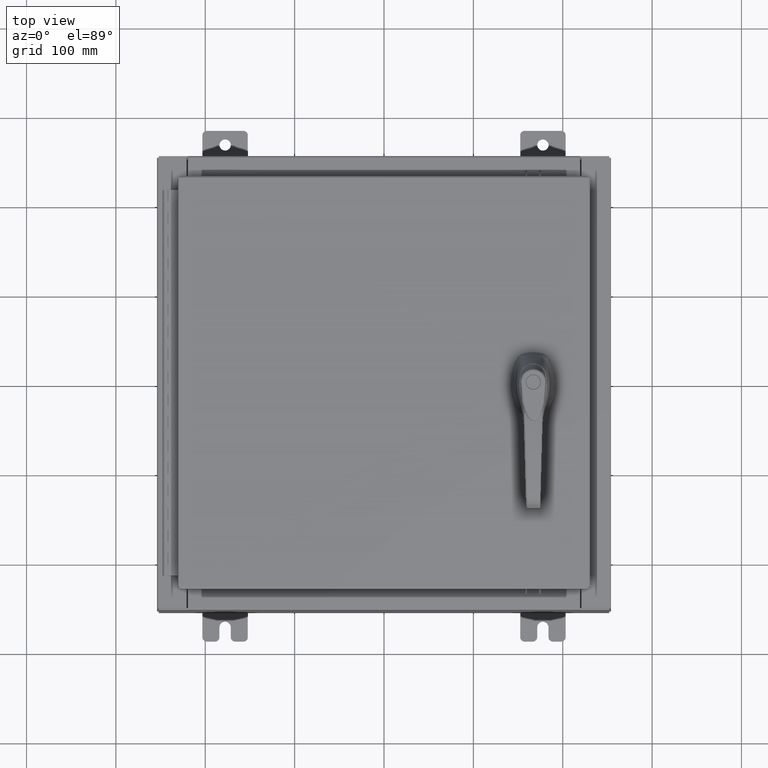
[diagram: clean part render]
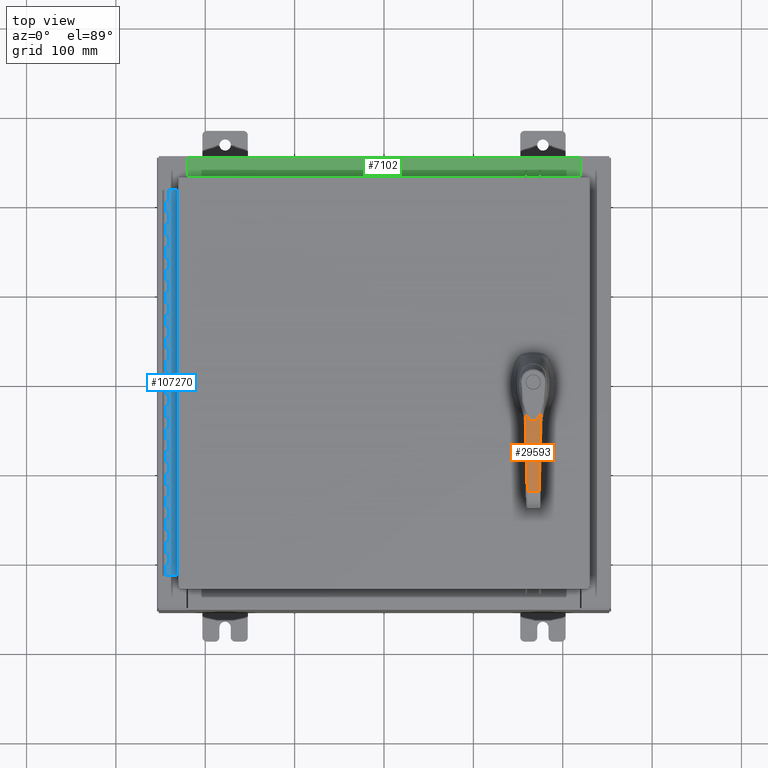
[diagram: same view with three faces highlighted in distinct colors, each labeled with its STEP entity id]
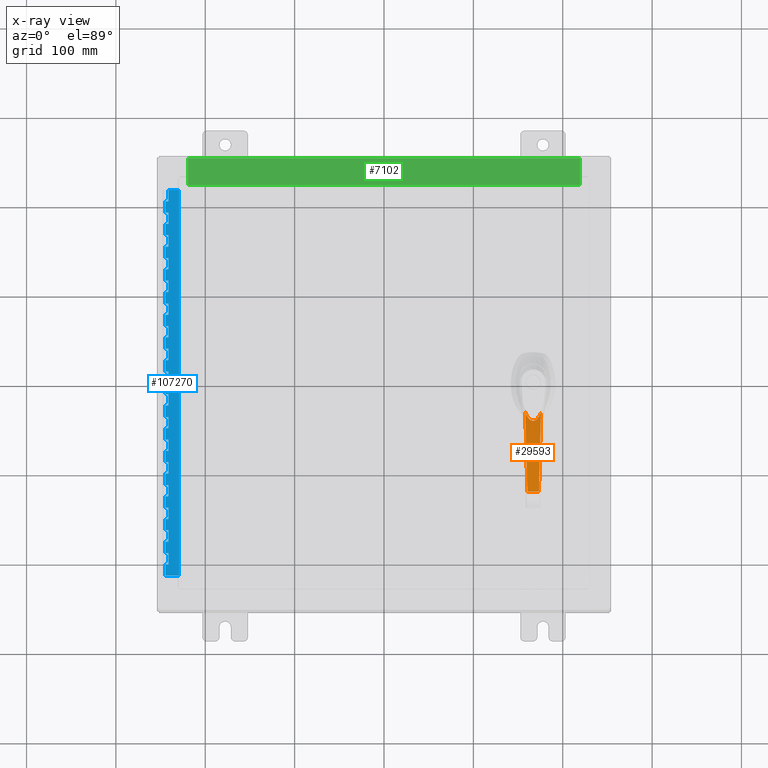
[diagram: x-ray of the same camera — body ghosted, the three highlighted faces saturated]
A machine part, top view with three faces highlighted in distinct colors.
The next image is the same camera in x-ray (body ghosted, the three faces saturated) — at least one of them is partly hidden behind the body in this view.
Their STEP definitions:

[orange] entity #29593 — the highlighted cylindrical surface (partial cylindrical patch) has radius 300 mm, axis along (-1, 0, 0).
#2665 = EDGE_CURVE ( 'NONE', #50879, #54446, #17785, .T. ) ;
#2904 = CARTESIAN_POINT ( 'NONE',  ( 1.549936709521859000, -0.3396595521461253700, 1.832114909085235600 ) ) ;
#4160 = B_SPLINE_CURVE_WITH_KNOTS ( 'NONE', 3,
 ( #87568, #28565, #37075, #96033 ),
 .UNSPECIFIED., .F., .F.,
 ( 4, 4 ),
 ( 0.0000000000000000000, 1.000000000000000000 ),
 .UNSPECIFIED. ) ;
#4940 = CARTESIAN_POINT ( 'NONE',  ( 1.377774985390543000, 0.3154086851259892400, 1.807295794097437900 ) ) ;
#5305 = CARTESIAN_POINT ( 'NONE',  ( 1.524578228761914300, 0.2319618882066546400, 1.828620816553894600 ) ) ;
#5678 = CARTESIAN_POINT ( 'NONE',  ( 1.631777938687829300, 0.1317797834924152600, 1.843011216588306100 ) ) ;
#5881 = AXIS2_PLACEMENT_3D ( 'NONE', #104390, #62352, #11070 ) ;
#6032 = CARTESIAN_POINT ( 'NONE',  ( 1.675872596846181600, 0.04566907200706407000, 1.848644063507531400 ) ) ;
#6422 = CARTESIAN_POINT ( 'NONE',  ( 1.649525308882289200, -0.1053112417757877500, 1.845297665867063200 ) ) ;
#6773 = CARTESIAN_POINT ( 'NONE',  ( 1.540911026017887300, -0.2200747778046581700, 1.830878084273666500 ) ) ;
#7059 = VERTEX_POINT ( 'NONE', #15410 ) ;
#7124 = CARTESIAN_POINT ( 'NONE',  ( 1.415001884902496600, -0.2971666495078784700, 1.812875826676418400 ) ) ;
#7783 = EDGE_CURVE ( 'NONE', #7059, #50879, #93276, .T. ) ;
#8270 = ORIENTED_EDGE ( 'NONE', *, *, #61293, .F. ) ;
#11070 = DIRECTION ( 'NONE',  ( 0.0000000000000000000, 0.0000000000000000000, -1.000000000000000000 ) ) ;
#11590 = VERTEX_POINT ( 'NONE', #54975 ) ;
#13040 = CARTESIAN_POINT ( 'NONE',  ( 1.461149604711799100, 0.3419711910575371500, 1.819977865742893600 ) ) ;
#13404 = CARTESIAN_POINT ( 'NONE',  ( 1.403971242061131700, 0.3027154104630230300, 1.811233171745011900 ) ) ;
#13749 = CARTESIAN_POINT ( 'NONE',  ( 1.530290378760440900, 0.2278771327639587700, 1.829412508182425700 ) ) ;
#14123 = CARTESIAN_POINT ( 'NONE',  ( 1.632741932373680700, 0.1304805322846232000, 1.843136084596468200 ) ) ;
#14509 = CARTESIAN_POINT ( 'NONE',  ( 1.680095335233368100, -0.01197136183687798000, 1.849171087712740500 ) ) ;
#14873 = CARTESIAN_POINT ( 'NONE',  ( 1.638941990221857400, -0.1218315539769631400, 1.843937560668217300 ) ) ;
#15223 = CARTESIAN_POINT ( 'NONE',  ( 1.534019329573112600, -0.2251692678404879100, 1.829928034573026000 ) ) ;
#15410 = CARTESIAN_POINT ( 'NONE',  ( 4.805199877897497800, -0.2549857665720936500, 1.824333981427782400 ) ) ;
#15555 = ORIENTED_EDGE ( 'NONE', *, *, #20773, .T. ) ;
#15599 = CARTESIAN_POINT ( 'NONE',  ( 1.413242188827258200, -0.2980603697912322400, 1.812614391285411100 ) ) ;
#17785 = B_SPLINE_CURVE_WITH_KNOTS ( 'NONE', 3,
 ( #102168, #75632, #63867, #62069, #69311, #90449, #75984, #74910, #69677, #62789, #70181, #70406, #61933, #61203, #59439, #59777, #58349, #58707, #57240, #60856, #59062, #57980, #54378, #53643, #53878, #54723, #56157 ),
 .UNSPECIFIED., .F., .F.,
 ( 4, 2, 2, 2, 2, 2, 1, 1, 1, 2, 2, 2, 2, 2, 4 ),
 ( 0.0000000000000000000, 0.1250000000000066100, 0.2500000000000132100, 0.3750000000000198200, 0.4375000000000230900, 0.4687500000000247600, 0.4843750000000258100, 0.4921875000000263700, 0.4960937500000263700, 0.4980468750000264200, 0.5000000000000264200, 0.6250000000000197600, 0.7500000000000132100, 0.8750000000000065500, 1.000000000000000000 ),
 .UNSPECIFIED. ) ;
#20773 = EDGE_CURVE ( 'NONE', #81642, #106180, #103941, .T. ) ;
#21916 = CARTESIAN_POINT ( 'NONE',  ( 1.410378708594597600, 0.2995076315425556600, 1.812188464822335600 ) ) ;
#22282 = CARTESIAN_POINT ( 'NONE',  ( 1.531637965723847300, 0.2269023104898830500, 1.829598928321424200 ) ) ;
#22657 = CARTESIAN_POINT ( 'NONE',  ( 1.640565656399495000, 0.1198494022903185000, 1.844149003382669500 ) ) ;
#23006 = CARTESIAN_POINT ( 'NONE',  ( 1.675677567251034000, -0.04071549074534740900, 1.848616337587193300 ) ) ;
#23392 = CARTESIAN_POINT ( 'NONE',  ( 1.634216720233409200, -0.1284710039474825400, 1.843326990127290800 ) ) ;
#23755 = CARTESIAN_POINT ( 'NONE',  ( 1.532357968586527600, -0.2263797702776801100, 1.829698477823363100 ) ) ;
#24118 = CARTESIAN_POINT ( 'NONE',  ( 1.373760058113485000, -0.3180463064242660100, 1.806743859184427100 ) ) ;
#27358 = ORIENTED_EDGE ( 'NONE', *, *, #55466, .F. ) ;
#27995 = CARTESIAN_POINT ( 'NONE',  ( 4.266296091497493700, -0.2690033809075378900, 1.900627307953364000 ) ) ;
#28565 = CARTESIAN_POINT ( 'NONE',  ( 1.461149604711532000, -0.3419711910575428700, 1.819977865742856000 ) ) ;
#29593 = ADVANCED_FACE ( 'NONE', ( #46139 ), #43511, .T. ) ;
#30417 = CARTESIAN_POINT ( 'NONE',  ( 1.411895976838739800, 0.2987418508005002500, 1.812414227103907000 ) ) ;
#30773 = CARTESIAN_POINT ( 'NONE',  ( 1.553573932691922000, 0.2109698468301410000, 1.832631472685386300 ) ) ;
#31146 = CARTESIAN_POINT ( 'NONE',  ( 1.655649401556312400, 0.09432184503515099500, 1.846080186316502600 ) ) ;
#31528 = CARTESIAN_POINT ( 'NONE',  ( 1.670501837927473600, -0.05933737364029612700, 1.847964213049003900 ) ) ;
#31895 = CARTESIAN_POINT ( 'NONE',  ( 1.633059957810182300, -0.1300495619729993800, 1.843177265309141600 ) ) ;
#32246 = CARTESIAN_POINT ( 'NONE',  ( 1.514556654445395700, -0.2392854525976224900, 1.827236800739576500 ) ) ;
#32613 = CARTESIAN_POINT ( 'NONE',  ( 1.285167405151898400, -0.3546133440856412100, 1.792860362220502400 ) ) ;
#34599 = CARTESIAN_POINT ( 'NONE',  ( 4.805199877897496900, 0.2549857665720959800, 1.824333981427782400 ) ) ;
#35150 = B_SPLINE_CURVE_WITH_KNOTS ( 'NONE', 3,
 ( #87009, #27995, #95478, #44979, #103933, #53459, #2904 ),
 .UNSPECIFIED., .F., .F.,
 ( 4, 3, 4 ),
 ( 0.0000000000000000000, 0.4999999999999983900, 1.000000000000000000 ),
 .UNSPECIFIED. ) ;
#37075 = CARTESIAN_POINT ( 'NONE',  ( 1.372892883534211400, -0.3469424119739045200, 1.806884306011910200 ) ) ;
#38917 = CARTESIAN_POINT ( 'NONE',  ( 1.435195623636535500, 0.2869488096781734300, 1.815878705668508000 ) ) ;
#39273 = CARTESIAN_POINT ( 'NONE',  ( 1.597928116298629200, 0.1710148495156830500, 1.838578136496558100 ) ) ;
#39668 = CARTESIAN_POINT ( 'NONE',  ( 1.663589786831885200, 0.07759667621417810900, 1.847089689351789000 ) ) ;
#40029 = CARTESIAN_POINT ( 'NONE',  ( 1.667982851357451300, -0.06648546394591629800, 1.847645912295601500 ) ) ;
#40393 = CARTESIAN_POINT ( 'NONE',  ( 1.620322453436930900, -0.1472583990823385100, 1.841527598334620000 ) ) ;
#40748 = CARTESIAN_POINT ( 'NONE',  ( 1.466267725725023800, -0.2693476378157188500, 1.820376805866247300 ) ) ;
#42456 = EDGE_CURVE ( 'NONE', #11590, #106180, #4160, .T. ) ;
#43136 = DIRECTION ( 'NONE',  ( 0.0000000000000000000, 1.000000000000000000, 0.0000000000000000000 ) ) ;
#43511 = CYLINDRICAL_SURFACE ( 'NONE', #5881, 11.81102362204724300 ) ;
#44979 = CARTESIAN_POINT ( 'NONE',  ( 3.177837644293160400, -0.2973156531871434200, 1.940911141800460300 ) ) ;
#46139 = FACE_OUTER_BOUND ( 'NONE', #91701, .T. ) ;
#46656 = CARTESIAN_POINT ( 'NONE',  ( 1.372892883534751800, 0.3469424119738765400, 1.806884306011990600 ) ) ;
#47387 = CARTESIAN_POINT ( 'NONE',  ( 1.486437698170242500, 0.2572311655015946900, 1.823263412956679800 ) ) ;
#47754 = CARTESIAN_POINT ( 'NONE',  ( 1.621908635050497000, 0.1444618146254948700, 1.841728913890022800 ) ) ;
#48122 = CARTESIAN_POINT ( 'NONE',  ( 1.666216210166185900, 0.07113358953773331300, 1.847422397405533500 ) ) ;
#48460 = VECTOR ( 'NONE', #43136, 39.37007874015748100 ) ;
#48494 = CARTESIAN_POINT ( 'NONE',  ( 1.667157571439228600, -0.06869618003176464200, 1.847541531571267300 ) ) ;
#48868 = CARTESIAN_POINT ( 'NONE',  ( 1.580548218858697200, -0.1876082219816772000, 1.836261751761620200 ) ) ;
#49229 = CARTESIAN_POINT ( 'NONE',  ( 1.431996714045676000, -0.2883624919504084700, 1.815388736092747000 ) ) ;
#50879 = VERTEX_POINT ( 'NONE', #34599 ) ;
#52099 = ORIENTED_EDGE ( 'NONE', *, *, #7783, .T. ) ;
#52349 = CARTESIAN_POINT ( 'NONE',  ( 1.549936709521848100, 0.3396595521461270900, 1.832114909085234400 ) ) ;
#52970 = CARTESIAN_POINT ( 'NONE',  ( 1.285167405151898400, -0.3546133440856412100, 1.792860362220502400 ) ) ;
#53459 = CARTESIAN_POINT ( 'NONE',  ( 2.089199057867317400, -0.3256326111308647800, 1.905831137458304800 ) ) ;
#53643 = CARTESIAN_POINT ( 'NONE',  ( 1.962192344927163400, 0.3289308373534525200, 1.881644855761424700 ) ) ;
#53878 = CARTESIAN_POINT ( 'NONE',  ( 1.738344976384683900, 0.3347569108671062400, 1.856868895625623600 ) ) ;
#54378 = CARTESIAN_POINT ( 'NONE',  ( 2.085957004588871100, 0.3257099898517480400, 1.893740539790302400 ) ) ;
#54446 = VERTEX_POINT ( 'NONE', #52349 ) ;
#54723 = CARTESIAN_POINT ( 'NONE',  ( 1.638260262526217000, 0.3373621368790556400, 1.844188585699163800 ) ) ;
#54975 = CARTESIAN_POINT ( 'NONE',  ( 1.549936709521859000, -0.3396595521461253700, 1.832114909085235600 ) ) ;
#55466 = EDGE_CURVE ( 'NONE', #7059, #11590, #35150, .T. ) ;
#55487 = CARTESIAN_POINT ( 'NONE',  ( 1.362201980543991300, 0.3225149545132348100, 1.804919336107086500 ) ) ;
#55842 = CARTESIAN_POINT ( 'NONE',  ( 1.516830157375135300, 0.2373842696044991000, 1.827543091604346900 ) ) ;
#56157 = CARTESIAN_POINT ( 'NONE',  ( 1.549936709521848100, 0.3396595521461270900, 1.832114909085234400 ) ) ;
#56204 = CARTESIAN_POINT ( 'NONE',  ( 1.630415031557484800, 0.1335971382965786800, 1.842834560165926400 ) ) ;
#56576 = CARTESIAN_POINT ( 'NONE',  ( 1.666943250047650200, 0.06925946003726704500, 1.847514415332581800 ) ) ;
#56935 = CARTESIAN_POINT ( 'NONE',  ( 1.658104608024421300, -0.08997679606067522700, 1.846394063252969600 ) ) ;
#57240 = CARTESIAN_POINT ( 'NONE',  ( 2.994844391632358200, 0.3020755544132373000, 1.941348543382791100 ) ) ;
#57292 = CARTESIAN_POINT ( 'NONE',  ( 1.549882932702344200, -0.2132559411452238700, 1.832109519501141400 ) ) ;
#57655 = CARTESIAN_POINT ( 'NONE',  ( 1.417457569571613400, -0.2959139997767300500, 1.813240278477134900 ) ) ;
#57980 = CARTESIAN_POINT ( 'NONE',  ( 2.357254433555596900, 0.3186526733585843800, 1.915122674931469600 ) ) ;
#58349 = CARTESIAN_POINT ( 'NONE',  ( 3.183455179332785900, 0.2971695341875233400, 1.940896711539991800 ) ) ;
#58707 = CARTESIAN_POINT ( 'NONE',  ( 3.180696913865969300, 0.2972412797304878600, 1.940904307400735100 ) ) ;
#59062 = CARTESIAN_POINT ( 'NONE',  ( 2.504789629931729600, 0.3148162043671251500, 1.924408988684542400 ) ) ;
#59439 = CARTESIAN_POINT ( 'NONE',  ( 3.197470930382345000, 0.2968049740498352500, 1.940850218433535700 ) ) ;
#59777 = CARTESIAN_POINT ( 'NONE',  ( 3.189064689842291900, 0.2970236258625775800, 1.940879303231489700 ) ) ;
#60856 = CARTESIAN_POINT ( 'NONE',  ( 2.823583190880747400, 0.3065276448944515600, 1.937522127742024900 ) ) ;
#61203 = CARTESIAN_POINT ( 'NONE',  ( 3.217029300581202300, 0.2962962612095056400, 1.940761667420589200 ) ) ;
#61293 = EDGE_CURVE ( 'NONE', #81642, #54446, #109421, .T. ) ;
#61933 = CARTESIAN_POINT ( 'NONE',  ( 3.255921162986638300, 0.2952847344197879200, 1.940502775483815600 ) ) ;
#62069 = CARTESIAN_POINT ( 'NONE',  ( 4.384581782162134000, 0.2659316760357903200, 1.876757077655745200 ) ) ;
#62352 = DIRECTION ( 'NONE',  ( 0.0000000000000000000, -1.000000000000000000, 0.0000000000000000000 ) ) ;
#62778 = CARTESIAN_POINT ( 'NONE',  ( 1.285167403707583500, 0.3546133445978453800, 1.792860362760507800 ) ) ;
#62789 = CARTESIAN_POINT ( 'NONE',  ( 3.397158093014658800, 0.2916119047857188600, 1.938425827258925000 ) ) ;
#63867 = CARTESIAN_POINT ( 'NONE',  ( 4.611449591161986400, 0.2600272595664902500, 1.850686182147238200 ) ) ;
#63914 = CARTESIAN_POINT ( 'NONE',  ( 1.395339831983441600, 0.3069710070873726300, 1.809941467447426800 ) ) ;
#64285 = CARTESIAN_POINT ( 'NONE',  ( 1.528395749153942800, 0.2292404292824109500, 1.829150185326987400 ) ) ;
#64650 = CARTESIAN_POINT ( 'NONE',  ( 1.632357006304437000, 0.1310003132830380700, 1.843086230139446400 ) ) ;
#65023 = CARTESIAN_POINT ( 'NONE',  ( 1.680175953285407000, 0.02266160196180203400, 1.849181196457978100 ) ) ;
#65377 = CARTESIAN_POINT ( 'NONE',  ( 1.644906487703457200, -0.1129549742528684600, 1.844705813593933800 ) ) ;
#65755 = CARTESIAN_POINT ( 'NONE',  ( 1.536332061329278800, -0.2234729747293776300, 1.830247252460746300 ) ) ;
#66112 = CARTESIAN_POINT ( 'NONE',  ( 1.413946465048467000, -0.2977029543502160400, 1.812719044079245100 ) ) ;
#69311 = CARTESIAN_POINT ( 'NONE',  ( 4.260082169442985600, 0.2691715254287422900, 1.889412627025912600 ) ) ;
#69677 = CARTESIAN_POINT ( 'NONE',  ( 3.523797029380384000, 0.2883190942660985900, 1.935318005950529500 ) ) ;
#70181 = CARTESIAN_POINT ( 'NONE',  ( 3.354255696629973000, 0.2927274858646526900, 1.939252233246037600 ) ) ;
#70406 = CARTESIAN_POINT ( 'NONE',  ( 3.288871157594097200, 0.2944278238416445100, 1.940143925120731700 ) ) ;
#72038 = CARTESIAN_POINT ( 'NONE',  ( 1.549936709521848100, 0.3396595521461270900, 1.832114909085234400 ) ) ;
#72393 = CARTESIAN_POINT ( 'NONE',  ( 1.408249181654886300, 0.3005784227495882900, 1.811871312986568900 ) ) ;
#72771 = CARTESIAN_POINT ( 'NONE',  ( 1.531099334706964100, 0.2272923127439798700, 1.829524427485562000 ) ) ;
#73120 = CARTESIAN_POINT ( 'NONE',  ( 1.632892665029209700, 0.1302765233638269200, 1.843155604267183300 ) ) ;
#73494 = CARTESIAN_POINT ( 'NONE',  ( 1.678980772138702900, -0.02348651453883024400, 1.849031485695043800 ) ) ;
#73860 = CARTESIAN_POINT ( 'NONE',  ( 1.635815798552256600, -0.1262595667975525100, 1.843533802100506300 ) ) ;
#74234 = CARTESIAN_POINT ( 'NONE',  ( 1.533023177175520900, -0.2258956494556961500, 1.829790409659591400 ) ) ;
#74587 = CARTESIAN_POINT ( 'NONE',  ( 1.412839862362145600, -0.2982642543102410600, 1.812554586203142200 ) ) ;
#74910 = CARTESIAN_POINT ( 'NONE',  ( 3.605464906671495700, 0.2861957975425940000, 1.932408694108102900 ) ) ;
#75632 = CARTESIAN_POINT ( 'NONE',  ( 4.713819558154678900, 0.2573626924901422100, 1.837270814955571000 ) ) ;
#75984 = CARTESIAN_POINT ( 'NONE',  ( 3.842159367048327400, 0.2800416382408065800, 1.921681097564914600 ) ) ;
#80549 = CARTESIAN_POINT ( 'NONE',  ( 1.308225132359822000, 0.3456984148396822200, 1.796546292019673100 ) ) ;
#80909 = CARTESIAN_POINT ( 'NONE',  ( 1.411289339368788000, 0.2990482287359028100, 1.812323976823124300 ) ) ;
#81259 = CARTESIAN_POINT ( 'NONE',  ( 1.531841238162610500, 0.2267549729690646600, 1.829627039123025200 ) ) ;
#81634 = CARTESIAN_POINT ( 'NONE',  ( 1.647126988818380200, 0.1096758325861598200, 1.844991371880547100 ) ) ;
#81642 = VERTEX_POINT ( 'NONE', #62778 ) ;
#82011 = CARTESIAN_POINT ( 'NONE',  ( 1.673618130089375500, -0.04931904063700305600, 1.848357284676164200 ) ) ;
#82357 = CARTESIAN_POINT ( 'NONE',  ( 1.633523690778703000, -0.1294182121702315800, 1.843237296713768700 ) ) ;
#82739 = CARTESIAN_POINT ( 'NONE',  ( 1.531958825236969800, -0.2266696006880540300, 1.829643296008418600 ) ) ;
#83107 = CARTESIAN_POINT ( 'NONE',  ( 1.331296485917116400, -0.3367782127205265500, 1.800234481340103700 ) ) ;
#85125 = CARTESIAN_POINT ( 'NONE',  ( 4.805199877897498700, 6.099088612688645700, 1.824333981427783700 ) ) ;
#87009 = CARTESIAN_POINT ( 'NONE',  ( 4.805199877897497800, -0.2549857665720936500, 1.824333981427782400 ) ) ;
#87568 = CARTESIAN_POINT ( 'NONE',  ( 1.549936709521859000, -0.3396595521461253700, 1.832114909085235600 ) ) ;
#89034 = CARTESIAN_POINT ( 'NONE',  ( 1.330367034998300800, 0.3365594585218244000, 1.800015887332627700 ) ) ;
#89397 = CARTESIAN_POINT ( 'NONE',  ( 1.412147350919595200, 0.2986147853169351900, 1.812451616407726700 ) ) ;
#89777 = CARTESIAN_POINT ( 'NONE',  ( 1.572688659303555600, 0.1951527432348471000, 1.835214844775206400 ) ) ;
#90135 = CARTESIAN_POINT ( 'NONE',  ( 1.659580715408767400, 0.08662144301095381400, 1.846580881106998800 ) ) ;
#90449 = CARTESIAN_POINT ( 'NONE',  ( 3.988872018762663600, 0.2762265065312504700, 1.911874702511218400 ) ) ;
#90494 = CARTESIAN_POINT ( 'NONE',  ( 1.668765304187870900, -0.06434175467436680000, 1.847744838486964600 ) ) ;
#90865 = CARTESIAN_POINT ( 'NONE',  ( 1.632785392386059800, -0.1304217021505263400, 1.843141712585298000 ) ) ;
#91228 = CARTESIAN_POINT ( 'NONE',  ( 1.496057899066958900, -0.2514591596072181500, 1.824640546464770400 ) ) ;
#91701 = EDGE_LOOP ( 'NONE', ( #52099, #105424, #8270, #15555, #97769, #27358 ) ) ;
#93276 = LINE ( 'NONE', #85125, #48460 ) ;
#95478 = CARTESIAN_POINT ( 'NONE',  ( 3.722113557932751800, -0.2831583025764936600, 1.939610180467789000 ) ) ;
#96033 = CARTESIAN_POINT ( 'NONE',  ( 1.285167405151898400, -0.3546133440856412100, 1.792860362220502400 ) ) ;
#97148 = CARTESIAN_POINT ( 'NONE',  ( 1.285167403707583500, 0.3546133445978453800, 1.792860362760507800 ) ) ;
#97769 = ORIENTED_EDGE ( 'NONE', *, *, #42456, .F. ) ;
#97885 = CARTESIAN_POINT ( 'NONE',  ( 1.456517634884649400, 0.2752119614751013000, 1.818981777874292700 ) ) ;
#98251 = CARTESIAN_POINT ( 'NONE',  ( 1.609689720394137200, 0.1588428430745450500, 1.840131652460306400 ) ) ;
#98611 = CARTESIAN_POINT ( 'NONE',  ( 1.665449941461016900, 0.07307405170698719200, 1.847325382728704800 ) ) ;
#98988 = CARTESIAN_POINT ( 'NONE',  ( 1.667452722112527900, -0.06791437558087425100, 1.847578869016391200 ) ) ;
#99350 = CARTESIAN_POINT ( 'NONE',  ( 1.605775901944861400, -0.1635624813666115800, 1.839624697243178200 ) ) ;
#99720 = CARTESIAN_POINT ( 'NONE',  ( 1.450862142650996700, -0.2781988563434960000, 1.818152528769768600 ) ) ;
#102168 = CARTESIAN_POINT ( 'NONE',  ( 4.805199877897496900, 0.2549857665720959800, 1.824333981427782400 ) ) ;
#103933 = CARTESIAN_POINT ( 'NONE',  ( 2.633561730653564600, -0.3114730037977933000, 1.942212103133131400 ) ) ;
#103941 = B_SPLINE_CURVE_WITH_KNOTS ( 'NONE', 3,
 ( #105971, #80549, #89034, #55487, #4940, #63914, #13404, #72393, #21916, #80909, #30417, #89397, #38917, #97885, #47387, #106318, #55842, #5305, #64285, #13749, #72771, #22282, #81259, #30773, #89777, #39273, #98251, #47754, #106699, #56204, #5678, #64650, #14123, #73120, #22657, #81634, #31146, #90135, #39668, #98611, #48122, #107074, #56576, #6032, #65023, #14509, #73494, #23006, #82011, #31528, #90494, #40029, #98988, #48494, #107441, #56935, #6422, #65377, #14873, #73860, #23392, #82357, #31895, #90865, #40393, #99350, #48868, #107803, #57292, #6773, #65755, #15223, #74234, #23755, #82739, #32246, #91228, #40748, #99720, #49229, #108172, #57655, #7124, #66112, #15599, #74587, #24118, #83107, #32613 ),
 .UNSPECIFIED., .F., .F.,
 ( 4, 2, 1, 1, 1, 1, 1, 2, 2, 2, 1, 1, 1, 1, 1, 2, 2, 2, 1, 1, 1, 1, 1, 2, 2, 2, 1, 1, 1, 2, 2, 2, 2, 1, 1, 1, 2, 2, 2, 1, 1, 1, 1, 2, 2, 2, 1, 1, 1, 1, 1, 2, 2, 2, 1, 1, 1, 1, 1, 2, 2, 4 ),
 ( 0.0000000000000000000, 0.06249999999996815000, 0.09374999999995251000, 0.1093749999999447100, 0.1171874999999410500, 0.1210937499999395100, 0.1230468749999387300, 0.1240234374999383100, 0.1249999999999378800, 0.1874999999999314700, 0.2187499999999286100, 0.2343749999999275300, 0.2421874999999269200, 0.2460937499999266700, 0.2480468749999268100, 0.2490234374999269200, 0.2499999999999270000, 0.3124999999999368800, 0.3437499999999417700, 0.3593749999999442700, 0.3671874999999457700, 0.3710937499999464900, 0.3730468749999466000, 0.3740234374999464300, 0.3749999999999462700, 0.4062499999999482600, 0.4218749999999491500, 0.4296874999999496000, 0.4335937499999499800, 0.4355468749999501500, 0.4374999999999503200, 0.4999999999999544800, 0.5312499999999565900, 0.5468749999999577000, 0.5546874999999581400, 0.5585937499999582600, 0.5605468749999583700, 0.5624999999999584800, 0.5937499999999634700, 0.6093749999999660300, 0.6171874999999673600, 0.6210937499999680300, 0.6230468749999683600, 0.6240234374999685800, 0.6249999999999686900, 0.6874999999999671400, 0.7187499999999663600, 0.7343749999999660300, 0.7421874999999658100, 0.7460937499999656900, 0.7480468749999656900, 0.7490234374999654700, 0.7499999999999651400, 0.8124999999999749100, 0.8437499999999793500, 0.8593749999999812400, 0.8671874999999823500, 0.8710937499999827900, 0.8730468749999826800, 0.8740234374999822400, 0.8749999999999819000, 1.000000000000000000 ),
 .UNSPECIFIED. ) ;
#104390 = CARTESIAN_POINT ( 'NONE',  ( 3.149606299212600400, 0.3588687022006186700, -9.870078740157481400 ) ) ;
#105424 = ORIENTED_EDGE ( 'NONE', *, *, #2665, .T. ) ;
#105971 = CARTESIAN_POINT ( 'NONE',  ( 1.285167403707583500, 0.3546133445978453800, 1.792860362760507800 ) ) ;
#106180 = VERTEX_POINT ( 'NONE', #52970 ) ;
#106318 = CARTESIAN_POINT ( 'NONE',  ( 1.500882007459669400, 0.2481468865976165000, 1.825310919166957200 ) ) ;
#106699 = CARTESIAN_POINT ( 'NONE',  ( 1.627642221730817300, 0.1372262118340391600, 1.842474734026384500 ) ) ;
#107074 = CARTESIAN_POINT ( 'NONE',  ( 1.666720180148481200, 0.06983946041971624000, 1.847486187034457700 ) ) ;
#107441 = CARTESIAN_POINT ( 'NONE',  ( 1.662946339963039100, -0.07969119123599842400, 1.847008659323601900 ) ) ;
#107803 = CARTESIAN_POINT ( 'NONE',  ( 1.567082441918983000, -0.1995284965863739800, 1.834452944274883600 ) ) ;
#108172 = CARTESIAN_POINT ( 'NONE',  ( 1.422341089794108900, -0.2934036132516573100, 1.813963700160028600 ) ) ;
#109421 = B_SPLINE_CURVE_WITH_KNOTS ( 'NONE', 3,
 ( #97148, #46656, #13040, #72038 ),
 .UNSPECIFIED., .F., .F.,
 ( 4, 4 ),
 ( 0.0000000000000000000, 1.000000000000000000 ),
 .UNSPECIFIED. ) ;

[blue] entity #107270 — the highlighted planar face has unit normal (-0, -0, 1).
#124 = EDGE_CURVE ( 'NONE', #25169, #34140, #9343, .T. ) ;
#288 = CARTESIAN_POINT ( 'NONE',  ( -0.6869999999999978300, 0.6754999999999996600, -13.50000000000000000 ) ) ;
#342 = VERTEX_POINT ( 'NONE', #30164 ) ;
#487 = ORIENTED_EDGE ( 'NONE', *, *, #48626, .F. ) ;
#546 = VECTOR ( 'NONE', #93070, 39.37007874015748100 ) ;
#817 = ORIENTED_EDGE ( 'NONE', *, *, #45291, .F. ) ;
#1235 = CARTESIAN_POINT ( 'NONE',  ( -0.6869999999999982800, 0.5504999999999997700, -10.00000000000000000 ) ) ;
#1912 = CARTESIAN_POINT ( 'NONE',  ( -0.6869999999999978300, 0.6754999999999996600, -17.00000000000000000 ) ) ;
#1949 = CARTESIAN_POINT ( 'NONE',  ( -0.6869999999999978300, 0.6754999999999996600, -17.00000000000000000 ) ) ;
#2004 = DIRECTION ( 'NONE',  ( 3.369016658928398200E-015, 1.000000000000000000, 0.0000000000000000000 ) ) ;
#2172 = VECTOR ( 'NONE', #41836, 39.37007874015748100 ) ;
#3060 = DIRECTION ( 'NONE',  ( 0.0000000000000000000, -0.0000000000000000000, -1.000000000000000000 ) ) ;
#3418 = VECTOR ( 'NONE', #37598, 39.37007874015748100 ) ;
#3503 = LINE ( 'NONE', #100079, #90630 ) ;
#3625 = CARTESIAN_POINT ( 'NONE',  ( -0.6869999999999982800, 0.5504999999999997700, -8.500000000000000000 ) ) ;
#3667 = CARTESIAN_POINT ( 'NONE',  ( -0.6869999999999973900, 0.8004999999999995500, -8.500000000000000000 ) ) ;
#3794 = VERTEX_POINT ( 'NONE', #49396 ) ;
#3958 = ORIENTED_EDGE ( 'NONE', *, *, #25187, .T. ) ;
#4028 = ORIENTED_EDGE ( 'NONE', *, *, #108444, .T. ) ;
#4043 = DIRECTION ( 'NONE',  ( 0.0000000000000000000, -0.0000000000000000000, -1.000000000000000000 ) ) ;
#4356 = DIRECTION ( 'NONE',  ( 1.000000000000000000, -3.369016658928398200E-015, 0.0000000000000000000 ) ) ;
#4529 = LINE ( 'NONE', #81278, #91655 ) ;
#4984 = CARTESIAN_POINT ( 'NONE',  ( -0.6869999999999978300, 0.6754999999999996600, -17.00000000000000000 ) ) ;
#5113 = VERTEX_POINT ( 'NONE', #104610 ) ;
#5588 = LINE ( 'NONE', #13387, #92686 ) ;
#5614 = LINE ( 'NONE', #48490, #8254 ) ;
#5761 = VERTEX_POINT ( 'NONE', #101324 ) ;
#5926 = ORIENTED_EDGE ( 'NONE', *, *, #31053, .F. ) ;
#6068 = VERTEX_POINT ( 'NONE', #11977 ) ;
#7146 = LINE ( 'NONE', #60126, #49423 ) ;
#7522 = EDGE_CURVE ( 'NONE', #100169, #26435, #24734, .T. ) ;
#7568 = VECTOR ( 'NONE', #9625, 39.37007874015748100 ) ;
#7949 = VERTEX_POINT ( 'NONE', #87689 ) ;
#7982 = VECTOR ( 'NONE', #26272, 39.37007874015748100 ) ;
#8254 = VECTOR ( 'NONE', #14502, 39.37007874015748100 ) ;
#8368 = CARTESIAN_POINT ( 'NONE',  ( -0.6869999999999982800, 0.5504999999999997700, -8.500000000000000000 ) ) ;
#8393 = DIRECTION ( 'NONE',  ( -3.389037039080723100E-015, -1.000000000000000000, 0.0000000000000000000 ) ) ;
#8501 = ORIENTED_EDGE ( 'NONE', *, *, #82675, .F. ) ;
#8714 = EDGE_CURVE ( 'NONE', #5761, #20887, #13987, .T. ) ;
#8807 = EDGE_CURVE ( 'NONE', #82118, #61496, #25889, .T. ) ;
#8855 = VECTOR ( 'NONE', #83367, 39.37007874015748100 ) ;
#8886 = ORIENTED_EDGE ( 'NONE', *, *, #41263, .F. ) ;
#8937 = EDGE_CURVE ( 'NONE', #44219, #92947, #87900, .T. ) ;
#9027 = CARTESIAN_POINT ( 'NONE',  ( -0.6869999999999978300, 0.6754999999999996600, -5.500000000000000000 ) ) ;
#9034 = VERTEX_POINT ( 'NONE', #23156 ) ;
#9279 = CARTESIAN_POINT ( 'NONE',  ( -0.6869999999999978300, 0.6754999999999996600, -17.00000000000000000 ) ) ;
#9291 = LINE ( 'NONE', #93618, #71289 ) ;
#9343 = LINE ( 'NONE', #40864, #96461 ) ;
#9461 = EDGE_CURVE ( 'NONE', #21581, #84836, #69331, .T. ) ;
#9599 = EDGE_CURVE ( 'NONE', #100169, #90278, #73246, .T. ) ;
#9625 = DIRECTION ( 'NONE',  ( 3.389037039080723100E-015, 1.000000000000000000, -0.0000000000000000000 ) ) ;
#9934 = ORIENTED_EDGE ( 'NONE', *, *, #11032, .F. ) ;
#10140 = VERTEX_POINT ( 'NONE', #79008 ) ;
#10202 = CARTESIAN_POINT ( 'NONE',  ( -0.6869999999999982800, 0.5504999999999997700, -7.499999999999999100 ) ) ;
#10398 = DIRECTION ( 'NONE',  ( 0.0000000000000000000, 0.0000000000000000000, 1.000000000000000000 ) ) ;
#10496 = CARTESIAN_POINT ( 'NONE',  ( -0.6869999999999982800, 0.5504999999999997700, -7.000000000000000000 ) ) ;
#10744 = VECTOR ( 'NONE', #28290, 39.37007874015748100 ) ;
#11032 = EDGE_CURVE ( 'NONE', #68049, #89245, #7146, .T. ) ;
#11113 = CARTESIAN_POINT ( 'NONE',  ( -0.6869999999999978300, 0.6754999999999996600, -17.00000000000000000 ) ) ;
#11332 = VECTOR ( 'NONE', #102482, 39.37007874015748100 ) ;
#11804 = CARTESIAN_POINT ( 'NONE',  ( -0.6869999999999973900, 0.8004999999999995500, -6.499999999999999100 ) ) ;
#11916 = DIRECTION ( 'NONE',  ( 0.0000000000000000000, 0.0000000000000000000, 1.000000000000000000 ) ) ;
#11977 = CARTESIAN_POINT ( 'NONE',  ( -0.6869999999999978300, 0.6754999999999996600, -2.500000000000000000 ) ) ;
#12068 = CARTESIAN_POINT ( 'NONE',  ( -0.6869999999999982800, 0.5504999999999997700, -12.49999999999999800 ) ) ;
#12079 = DIRECTION ( 'NONE',  ( 0.0000000000000000000, -0.0000000000000000000, -1.000000000000000000 ) ) ;
#12089 = LINE ( 'NONE', #76311, #79430 ) ;
#12414 = LINE ( 'NONE', #101699, #79746 ) ;
#12791 = VECTOR ( 'NONE', #53306, 39.37007874015748100 ) ;
#12866 = VERTEX_POINT ( 'NONE', #32287 ) ;
#13084 = VERTEX_POINT ( 'NONE', #84226 ) ;
#13323 = VERTEX_POINT ( 'NONE', #38474 ) ;
#13327 = VECTOR ( 'NONE', #45976, 39.37007874015748100 ) ;
#13387 = CARTESIAN_POINT ( 'NONE',  ( -0.6869999999999973900, 0.8004999999999995500, -11.99999999999999800 ) ) ;
#13406 = LINE ( 'NONE', #45627, #10744 ) ;
#13417 = LINE ( 'NONE', #81051, #100572 ) ;
#13483 = CARTESIAN_POINT ( 'NONE',  ( -0.6869999999999973900, 0.8004999999999995500, -9.000000000000000000 ) ) ;
#13730 = EDGE_CURVE ( 'NONE', #60865, #70803, #12089, .T. ) ;
#13987 = LINE ( 'NONE', #26541, #11332 ) ;
#13997 = CARTESIAN_POINT ( 'NONE',  ( -0.6869999999999982800, 0.5504999999999997700, -16.50000000000000000 ) ) ;
#14087 = CARTESIAN_POINT ( 'NONE',  ( -0.6869999999999973900, 0.8004999999999995500, -7.499999999999999100 ) ) ;
#14153 = ORIENTED_EDGE ( 'NONE', *, *, #32768, .F. ) ;
#14339 = VECTOR ( 'NONE', #88543, 39.37007874015748100 ) ;
#14502 = DIRECTION ( 'NONE',  ( 3.389037039080723100E-015, 1.000000000000000000, -0.0000000000000000000 ) ) ;
#14667 = ORIENTED_EDGE ( 'NONE', *, *, #107349, .F. ) ;
#14754 = VECTOR ( 'NONE', #10398, 39.37007874015748100 ) ;
#15601 = DIRECTION ( 'NONE',  ( -3.389037039080723100E-015, -1.000000000000000000, 0.0000000000000000000 ) ) ;
#15786 = LINE ( 'NONE', #80777, #58033 ) ;
#15996 = LINE ( 'NONE', #54477, #13327 ) ;
#16299 = LINE ( 'NONE', #99618, #55882 ) ;
#16972 = ORIENTED_EDGE ( 'NONE', *, *, #9461, .T. ) ;
#17022 = ORIENTED_EDGE ( 'NONE', *, *, #52949, .T. ) ;
#17213 = ORIENTED_EDGE ( 'NONE', *, *, #106490, .F. ) ;
#17223 = CARTESIAN_POINT ( 'NONE',  ( -0.6869999999999978300, 0.6754999999999996600, -17.00000000000000000 ) ) ;
#17344 = DIRECTION ( 'NONE',  ( 0.0000000000000000000, -0.0000000000000000000, -1.000000000000000000 ) ) ;
#17359 = CARTESIAN_POINT ( 'NONE',  ( -0.6869999999999978300, 0.6754999999999996600, -10.00000000000000000 ) ) ;
#17389 = CARTESIAN_POINT ( 'NONE',  ( -0.6869999999999982800, 0.5504999999999997700, -14.49999999999999800 ) ) ;
#17455 = LINE ( 'NONE', #11113, #62315 ) ;
#17924 = CARTESIAN_POINT ( 'NONE',  ( -0.6869999999999982800, 0.5504999999999997700, -0.5000000000000000000 ) ) ;
#17967 = DIRECTION ( 'NONE',  ( 3.389037039080723100E-015, 1.000000000000000000, -0.0000000000000000000 ) ) ;
#18098 = VECTOR ( 'NONE', #2004, 39.37007874015748100 ) ;
#18109 = ORIENTED_EDGE ( 'NONE', *, *, #18162, .T. ) ;
#18162 = EDGE_CURVE ( 'NONE', #98548, #100311, #108207, .T. ) ;
#18611 = EDGE_CURVE ( 'NONE', #20887, #13084, #22404, .T. ) ;
#18776 = CARTESIAN_POINT ( 'NONE',  ( -0.6869999999999978300, 0.6754999999999996600, -8.000000000000000000 ) ) ;
#19147 = VERTEX_POINT ( 'NONE', #10202 ) ;
#19213 = LINE ( 'NONE', #13483, #61419 ) ;
#19462 = VERTEX_POINT ( 'NONE', #93004 ) ;
#19546 = LINE ( 'NONE', #21175, #42053 ) ;
#19667 = CARTESIAN_POINT ( 'NONE',  ( -0.6869999999999982800, 0.5504999999999997700, -5.500000000000000000 ) ) ;
#19746 = EDGE_CURVE ( 'NONE', #98548, #23462, #39494, .T. ) ;
#19770 = VECTOR ( 'NONE', #57291, 39.37007874015748100 ) ;
#19929 = VERTEX_POINT ( 'NONE', #46063 ) ;
#19948 = LINE ( 'NONE', #26215, #107025 ) ;
#19996 = VECTOR ( 'NONE', #3060, 39.37007874015748100 ) ;
#20028 = ORIENTED_EDGE ( 'NONE', *, *, #78865, .F. ) ;
#20231 = VECTOR ( 'NONE', #31059, 39.37007874015748100 ) ;
#20626 = VECTOR ( 'NONE', #74665, 39.37007874015748100 ) ;
#20887 = VERTEX_POINT ( 'NONE', #92308 ) ;
#20928 = CARTESIAN_POINT ( 'NONE',  ( -0.6869999999999982800, 0.5504999999999997700, -17.00000000000000000 ) ) ;
#20973 = CARTESIAN_POINT ( 'NONE',  ( -0.6870000000000022800, -0.6245000000000003900, -17.00000000000000000 ) ) ;
#21175 = CARTESIAN_POINT ( 'NONE',  ( -0.6869999999999973900, 0.8004999999999995500, -10.00000000000000000 ) ) ;
#21180 = ORIENTED_EDGE ( 'NONE', *, *, #18611, .F. ) ;
#21389 = VECTOR ( 'NONE', #17967, 39.37007874015748100 ) ;
#21396 = FACE_OUTER_BOUND ( 'NONE', #55600, .T. ) ;
#21581 = VERTEX_POINT ( 'NONE', #50548 ) ;
#21717 = CARTESIAN_POINT ( 'NONE',  ( -0.6869999999999982800, 0.5504999999999997700, -2.500000000000000000 ) ) ;
#21793 = VECTOR ( 'NONE', #4043, 39.37007874015748100 ) ;
#21944 = VERTEX_POINT ( 'NONE', #87232 ) ;
#21983 = LINE ( 'NONE', #92304, #2172 ) ;
#22340 = LINE ( 'NONE', #99283, #64533 ) ;
#22404 = LINE ( 'NONE', #48757, #109468 ) ;
#22500 = VECTOR ( 'NONE', #12079, 39.37007874015748100 ) ;
#22511 = EDGE_CURVE ( 'NONE', #104512, #61426, #21983, .T. ) ;
#22658 = CARTESIAN_POINT ( 'NONE',  ( -0.6869999999999978300, 0.6754999999999996600, 0.0000000000000000000 ) ) ;
#22678 = DIRECTION ( 'NONE',  ( -3.389037039080723100E-015, -1.000000000000000000, 0.0000000000000000000 ) ) ;
#23156 = CARTESIAN_POINT ( 'NONE',  ( -0.6869999999999982800, 0.5504999999999997700, -11.00000000000000000 ) ) ;
#23462 = VERTEX_POINT ( 'NONE', #81898 ) ;
#23774 = CARTESIAN_POINT ( 'NONE',  ( -0.6869999999999982800, 0.5504999999999997700, -1.000000000000000000 ) ) ;
#23956 = CARTESIAN_POINT ( 'NONE',  ( -0.6869999999999982800, 0.5504999999999997700, -5.500000000000000000 ) ) ;
#24170 = CARTESIAN_POINT ( 'NONE',  ( -0.6869999999999982800, 0.5504999999999997700, -1.499999999999999800 ) ) ;
#24302 = VERTEX_POINT ( 'NONE', #103661 ) ;
#24332 = VECTOR ( 'NONE', #40793, 39.37007874015748100 ) ;
#24357 = CARTESIAN_POINT ( 'NONE',  ( -0.6869999999999982800, 0.5504999999999997700, -2.500000000000000000 ) ) ;
#24734 = LINE ( 'NONE', #3667, #64244 ) ;
#25118 = EDGE_CURVE ( 'NONE', #19462, #72594, #34912, .T. ) ;
#25169 = VERTEX_POINT ( 'NONE', #288 ) ;
#25187 = EDGE_CURVE ( 'NONE', #6068, #24302, #12414, .T. ) ;
#25340 = EDGE_CURVE ( 'NONE', #47918, #79083, #88967, .T. ) ;
#25360 = CARTESIAN_POINT ( 'NONE',  ( -0.6869999999999973900, 0.8004999999999995500, -14.00000000000000000 ) ) ;
#25363 = DIRECTION ( 'NONE',  ( 3.369016658928398200E-015, 1.000000000000000000, 0.0000000000000000000 ) ) ;
#25862 = CARTESIAN_POINT ( 'NONE',  ( -0.6869999999999982800, 0.5504999999999997700, -4.500000000000000000 ) ) ;
#25889 = LINE ( 'NONE', #12068, #3418 ) ;
#26215 = CARTESIAN_POINT ( 'NONE',  ( -0.6869999999999973900, 0.8004999999999995500, -4.000000000000000000 ) ) ;
#26272 = DIRECTION ( 'NONE',  ( 0.0000000000000000000, 0.0000000000000000000, 1.000000000000000000 ) ) ;
#26374 = ORIENTED_EDGE ( 'NONE', *, *, #52800, .F. ) ;
#26435 = VERTEX_POINT ( 'NONE', #8368 ) ;
#26541 = CARTESIAN_POINT ( 'NONE',  ( -0.6869999999999973900, 0.8004999999999995500, -3.500000000000000000 ) ) ;
#26642 = AXIS2_PLACEMENT_3D ( 'NONE', #20973, #4356, #63362 ) ;
#27279 = CARTESIAN_POINT ( 'NONE',  ( -0.6869999999999982800, 0.5504999999999997700, -12.49999999999999800 ) ) ;
#27477 = EDGE_CURVE ( 'NONE', #10140, #38655, #5588, .T. ) ;
#28290 = DIRECTION ( 'NONE',  ( 0.0000000000000000000, -0.0000000000000000000, -1.000000000000000000 ) ) ;
#28414 = ORIENTED_EDGE ( 'NONE', *, *, #38675, .F. ) ;
#28430 = VECTOR ( 'NONE', #106011, 39.37007874015748100 ) ;
#28634 = DIRECTION ( 'NONE',  ( 0.0000000000000000000, 0.0000000000000000000, 1.000000000000000000 ) ) ;
#28873 = CARTESIAN_POINT ( 'NONE',  ( -0.6869999999999978300, 0.6754999999999996600, -9.500000000000000000 ) ) ;
#28876 = CARTESIAN_POINT ( 'NONE',  ( -0.6869999999999982800, 0.5504999999999997700, -6.499999999999999100 ) ) ;
#29030 = CARTESIAN_POINT ( 'NONE',  ( -0.6869999999999978300, 0.6754999999999996600, -14.99999999999999800 ) ) ;
#29409 = DIRECTION ( 'NONE',  ( 0.0000000000000000000, -0.0000000000000000000, -1.000000000000000000 ) ) ;
#29661 = DIRECTION ( 'NONE',  ( 3.389037039080723100E-015, 1.000000000000000000, -0.0000000000000000000 ) ) ;
#30001 = ORIENTED_EDGE ( 'NONE', *, *, #37063, .F. ) ;
#30164 = CARTESIAN_POINT ( 'NONE',  ( -0.6869999999999978300, 0.6754999999999996600, -16.00000000000000000 ) ) ;
#30591 = CARTESIAN_POINT ( 'NONE',  ( -0.6869999999999978300, 0.6754999999999996600, -12.99999999999999800 ) ) ;
#30597 = DIRECTION ( 'NONE',  ( 3.389037039080723100E-015, 1.000000000000000000, -0.0000000000000000000 ) ) ;
#30742 = LINE ( 'NONE', #93452, #92754 ) ;
#30831 = VECTOR ( 'NONE', #79874, 39.37007874015748100 ) ;
#30938 = VERTEX_POINT ( 'NONE', #47720 ) ;
#31053 = EDGE_CURVE ( 'NONE', #105991, #36382, #86875, .T. ) ;
#31059 = DIRECTION ( 'NONE',  ( 3.389037039080723100E-015, 1.000000000000000000, -0.0000000000000000000 ) ) ;
#31382 = CARTESIAN_POINT ( 'NONE',  ( -0.6869999999999973900, 0.8004999999999995500, -14.49999999999999800 ) ) ;
#31894 = CARTESIAN_POINT ( 'NONE',  ( -0.6869999999999982800, 0.5504999999999997700, -13.50000000000000000 ) ) ;
#31896 = CARTESIAN_POINT ( 'NONE',  ( -0.6869999999999982800, 0.5504999999999997700, -12.99999999999999800 ) ) ;
#32259 = CARTESIAN_POINT ( 'NONE',  ( -0.6869999999999973900, 0.8004999999999995500, -6.000000000000000900 ) ) ;
#32280 = VECTOR ( 'NONE', #8393, 39.37007874015748100 ) ;
#32287 = CARTESIAN_POINT ( 'NONE',  ( -0.6869999999999978300, 0.6754999999999996600, -6.499999999999999100 ) ) ;
#32490 = ORIENTED_EDGE ( 'NONE', *, *, #7522, .F. ) ;
#32566 = ORIENTED_EDGE ( 'NONE', *, *, #76491, .F. ) ;
#32693 = LINE ( 'NONE', #93742, #7568 ) ;
#32768 = EDGE_CURVE ( 'NONE', #106374, #105991, #77395, .T. ) ;
#33109 = EDGE_CURVE ( 'NONE', #47918, #41980, #61544, .T. ) ;
#33178 = LINE ( 'NONE', #54000, #97799 ) ;
#33476 = DIRECTION ( 'NONE',  ( 3.389037039080723100E-015, 1.000000000000000000, -0.0000000000000000000 ) ) ;
#34064 = ORIENTED_EDGE ( 'NONE', *, *, #68403, .T. ) ;
#34140 = VERTEX_POINT ( 'NONE', #45615 ) ;
#34230 = DIRECTION ( 'NONE',  ( 0.0000000000000000000, 0.0000000000000000000, 1.000000000000000000 ) ) ;
#34261 = LINE ( 'NONE', #97394, #54055 ) ;
#34356 = DIRECTION ( 'NONE',  ( 0.0000000000000000000, -0.0000000000000000000, -1.000000000000000000 ) ) ;
#34639 = DIRECTION ( 'NONE',  ( 0.0000000000000000000, -0.0000000000000000000, -1.000000000000000000 ) ) ;
#34783 = EDGE_CURVE ( 'NONE', #23462, #10140, #108861, .T. ) ;
#34912 = LINE ( 'NONE', #58933, #32280 ) ;
#35425 = LINE ( 'NONE', #96575, #57847 ) ;
#36022 = VECTOR ( 'NONE', #102268, 39.37007874015748100 ) ;
#36382 = VERTEX_POINT ( 'NONE', #78470 ) ;
#36584 = ORIENTED_EDGE ( 'NONE', *, *, #40042, .F. ) ;
#36611 = EDGE_CURVE ( 'NONE', #34140, #47234, #42265, .T. ) ;
#36767 = ORIENTED_EDGE ( 'NONE', *, *, #8807, .F. ) ;
#37063 = EDGE_CURVE ( 'NONE', #47234, #50414, #88357, .T. ) ;
#37088 = EDGE_CURVE ( 'NONE', #25169, #43636, #46142, .T. ) ;
#37396 = EDGE_CURVE ( 'NONE', #72831, #21944, #92263, .T. ) ;
#37542 = CARTESIAN_POINT ( 'NONE',  ( -0.6869999999999982800, 0.5504999999999997700, -9.500000000000000000 ) ) ;
#37598 = DIRECTION ( 'NONE',  ( 0.0000000000000000000, -0.0000000000000000000, -1.000000000000000000 ) ) ;
#37608 = DIRECTION ( 'NONE',  ( -3.389037039080723100E-015, -1.000000000000000000, 0.0000000000000000000 ) ) ;
#37698 = DIRECTION ( 'NONE',  ( -3.389037039080723100E-015, -1.000000000000000000, 0.0000000000000000000 ) ) ;
#38223 = ORIENTED_EDGE ( 'NONE', *, *, #36611, .F. ) ;
#38256 = VERTEX_POINT ( 'NONE', #9027 ) ;
#38474 = CARTESIAN_POINT ( 'NONE',  ( -0.6869999999999978300, 0.6754999999999996600, -4.000000000000000000 ) ) ;
#38555 = ORIENTED_EDGE ( 'NONE', *, *, #39762, .F. ) ;
#38655 = VERTEX_POINT ( 'NONE', #96756 ) ;
#38675 = EDGE_CURVE ( 'NONE', #68468, #99568, #19546, .T. ) ;
#38773 = CARTESIAN_POINT ( 'NONE',  ( -0.6869999999999973900, 0.8004999999999995500, -12.99999999999999800 ) ) ;
#39053 = CARTESIAN_POINT ( 'NONE',  ( -0.6869999999999978300, 0.6754999999999996600, -17.00000000000000000 ) ) ;
#39176 = VECTOR ( 'NONE', #25363, 39.37007874015748100 ) ;
#39494 = LINE ( 'NONE', #45775, #14339 ) ;
#39595 = CARTESIAN_POINT ( 'NONE',  ( -0.6869999999999978300, 0.6754999999999996600, -4.500000000000000000 ) ) ;
#39755 = VECTOR ( 'NONE', #30597, 39.37007874015748100 ) ;
#39762 = EDGE_CURVE ( 'NONE', #69765, #98514, #95963, .T. ) ;
#40042 = EDGE_CURVE ( 'NONE', #93365, #46017, #68208, .T. ) ;
#40238 = CARTESIAN_POINT ( 'NONE',  ( -0.6869999999999982800, 0.5504999999999997700, -1.499999999999999800 ) ) ;
#40618 = LINE ( 'NONE', #69110, #18098 ) ;
#40793 = DIRECTION ( 'NONE',  ( 0.0000000000000000000, 0.0000000000000000000, 1.000000000000000000 ) ) ;
#40864 = CARTESIAN_POINT ( 'NONE',  ( -0.6869999999999973900, 0.8004999999999995500, -13.50000000000000000 ) ) ;
#40897 = EDGE_CURVE ( 'NONE', #38256, #96716, #107716, .T. ) ;
#41263 = EDGE_CURVE ( 'NONE', #7949, #41980, #49678, .T. ) ;
#41325 = ORIENTED_EDGE ( 'NONE', *, *, #46330, .F. ) ;
#41836 = DIRECTION ( 'NONE',  ( 0.0000000000000000000, 0.0000000000000000000, 1.000000000000000000 ) ) ;
#41980 = VERTEX_POINT ( 'NONE', #20928 ) ;
#42053 = VECTOR ( 'NONE', #29661, 39.37007874015748100 ) ;
#42265 = LINE ( 'NONE', #31894, #19770 ) ;
#42711 = LINE ( 'NONE', #90055, #20231 ) ;
#43009 = ORIENTED_EDGE ( 'NONE', *, *, #71153, .F. ) ;
#43211 = DIRECTION ( 'NONE',  ( 3.389037039080723100E-015, 1.000000000000000000, -0.0000000000000000000 ) ) ;
#43534 = LINE ( 'NONE', #66082, #85717 ) ;
#43636 = VERTEX_POINT ( 'NONE', #30591 ) ;
#44219 = VERTEX_POINT ( 'NONE', #83511 ) ;
#44444 = CARTESIAN_POINT ( 'NONE',  ( -0.6869999999999982800, 0.5504999999999997700, -6.499999999999999100 ) ) ;
#44695 = DIRECTION ( 'NONE',  ( -3.389037039080723100E-015, -1.000000000000000000, 0.0000000000000000000 ) ) ;
#44815 = CARTESIAN_POINT ( 'NONE',  ( -0.6869999999999973900, 0.8004999999999995500, -1.000000000000000000 ) ) ;
#45291 = EDGE_CURVE ( 'NONE', #104512, #67917, #35425, .T. ) ;
#45456 = LINE ( 'NONE', #76082, #546 ) ;
#45537 = CARTESIAN_POINT ( 'NONE',  ( -0.6869999999999978300, 0.6754999999999996600, -17.00000000000000000 ) ) ;
#45615 = CARTESIAN_POINT ( 'NONE',  ( -0.6869999999999982800, 0.5504999999999997700, -13.50000000000000000 ) ) ;
#45627 = CARTESIAN_POINT ( 'NONE',  ( -0.6869999999999982800, 0.5504999999999997700, -0.5000000000000000000 ) ) ;
#45775 = CARTESIAN_POINT ( 'NONE',  ( -0.6869999999999973900, 0.8004999999999995500, -11.50000000000000000 ) ) ;
#45976 = DIRECTION ( 'NONE',  ( 0.0000000000000000000, 0.0000000000000000000, 1.000000000000000000 ) ) ;
#46017 = VERTEX_POINT ( 'NONE', #65742 ) ;
#46063 = CARTESIAN_POINT ( 'NONE',  ( -0.6869999999999978300, 0.6754999999999996600, -12.49999999999999800 ) ) ;
#46114 = DIRECTION ( 'NONE',  ( -3.389037039080723100E-015, -1.000000000000000000, 0.0000000000000000000 ) ) ;
#46142 = LINE ( 'NONE', #17223, #85698 ) ;
#46185 = LINE ( 'NONE', #11804, #108171 ) ;
#46330 = EDGE_CURVE ( 'NONE', #36382, #84836, #32693, .T. ) ;
#47170 = ORIENTED_EDGE ( 'NONE', *, *, #82479, .F. ) ;
#47234 = VERTEX_POINT ( 'NONE', #105329 ) ;
#47440 = ORIENTED_EDGE ( 'NONE', *, *, #56581, .F. ) ;
#47525 = DIRECTION ( 'NONE',  ( 0.0000000000000000000, 0.0000000000000000000, 1.000000000000000000 ) ) ;
#47720 = CARTESIAN_POINT ( 'NONE',  ( -0.6869999999999982800, 0.5504999999999997700, -9.000000000000000000 ) ) ;
#47918 = VERTEX_POINT ( 'NONE', #70197 ) ;
#48125 = CARTESIAN_POINT ( 'NONE',  ( -0.6869999999999978300, 0.6754999999999996600, -7.000000000000000000 ) ) ;
#48152 = CARTESIAN_POINT ( 'NONE',  ( -0.6869999999999978300, 0.6754999999999996600, -7.499999999999999100 ) ) ;
#48245 = DIRECTION ( 'NONE',  ( -3.389037039080723100E-015, -1.000000000000000000, 0.0000000000000000000 ) ) ;
#48490 = CARTESIAN_POINT ( 'NONE',  ( -0.6869999999999973900, 0.8004999999999995500, -2.000000000000000000 ) ) ;
#48583 = CARTESIAN_POINT ( 'NONE',  ( -0.6869999999999998300, 0.07549999999999991400, 0.0000000000000000000 ) ) ;
#48626 = EDGE_CURVE ( 'NONE', #44219, #93365, #98125, .T. ) ;
#48757 = CARTESIAN_POINT ( 'NONE',  ( -0.6869999999999982800, 0.5504999999999997700, -3.500000000000000000 ) ) ;
#48801 = DIRECTION ( 'NONE',  ( 0.0000000000000000000, 0.0000000000000000000, 1.000000000000000000 ) ) ;
#48826 = VECTOR ( 'NONE', #33476, 39.37007874015748100 ) ;
#48851 = EDGE_CURVE ( 'NONE', #9034, #100311, #42711, .T. ) ;
#49136 = DIRECTION ( 'NONE',  ( 0.0000000000000000000, -0.0000000000000000000, -1.000000000000000000 ) ) ;
#49396 = CARTESIAN_POINT ( 'NONE',  ( -0.6869999999999982800, 0.5504999999999997700, -4.500000000000000000 ) ) ;
#49423 = VECTOR ( 'NONE', #43211, 39.37007874015748100 ) ;
#49443 = LINE ( 'NONE', #14087, #69143 ) ;
#49552 = ORIENTED_EDGE ( 'NONE', *, *, #124, .F. ) ;
#49678 = LINE ( 'NONE', #13997, #89197 ) ;
#49778 = CARTESIAN_POINT ( 'NONE',  ( -0.6869999999999978300, 0.6754999999999996600, -2.999999999999999600 ) ) ;
#50414 = VERTEX_POINT ( 'NONE', #57978 ) ;
#50548 = CARTESIAN_POINT ( 'NONE',  ( -0.6869999999999978300, 0.6754999999999996600, -15.50000000000000000 ) ) ;
#50781 = ORIENTED_EDGE ( 'NONE', *, *, #106678, .T. ) ;
#51194 = EDGE_CURVE ( 'NONE', #38256, #89760, #15996, .T. ) ;
#51381 = VECTOR ( 'NONE', #87873, 39.37007874015748100 ) ;
#51596 = CARTESIAN_POINT ( 'NONE',  ( -0.6869999999999973900, 0.8004999999999995500, -5.000000000000000000 ) ) ;
#51620 = ORIENTED_EDGE ( 'NONE', *, *, #98926, .T. ) ;
#52767 = VERTEX_POINT ( 'NONE', #95928 ) ;
#52800 = EDGE_CURVE ( 'NONE', #12866, #92953, #46185, .T. ) ;
#52943 = EDGE_CURVE ( 'NONE', #21581, #60865, #105502, .T. ) ;
#52949 = EDGE_CURVE ( 'NONE', #106814, #80499, #15786, .T. ) ;
#53306 = DIRECTION ( 'NONE',  ( 3.389037039080723100E-015, 1.000000000000000000, -0.0000000000000000000 ) ) ;
#53613 = ORIENTED_EDGE ( 'NONE', *, *, #104194, .F. ) ;
#54000 = CARTESIAN_POINT ( 'NONE',  ( -0.6869999999999978300, 0.6754999999999996600, -17.00000000000000000 ) ) ;
#54055 = VECTOR ( 'NONE', #105848, 39.37007874015748100 ) ;
#54477 = CARTESIAN_POINT ( 'NONE',  ( -0.6869999999999978300, 0.6754999999999996600, -17.00000000000000000 ) ) ;
#54676 = VERTEX_POINT ( 'NONE', #48152 ) ;
#55152 = CARTESIAN_POINT ( 'NONE',  ( -0.6869999999999982800, 0.5504999999999997700, -2.999999999999999600 ) ) ;
#55467 = DIRECTION ( 'NONE',  ( 3.389037039080723100E-015, 1.000000000000000000, -0.0000000000000000000 ) ) ;
#55500 = CARTESIAN_POINT ( 'NONE',  ( -0.6869999999999978300, 0.6754999999999996600, -11.50000000000000000 ) ) ;
#55518 = LINE ( 'NONE', #9279, #7982 ) ;
#55600 = EDGE_LOOP ( 'NONE', ( #107245, #95466, #8886, #47440, #92988, #95359, #71643, #78311, #16972, #41325, #5926, #14153, #34064, #30001, #38223, #49552, #64798, #101518, #36767, #78969, #62106, #80638, #56670, #85329, #18109, #96965, #87242, #76530, #51620, #28414, #20028, #53613, #17022, #94663, #43009, #32490, #87260, #98356, #8501, #32566, #81764, #9934, #72098, #26374, #4028, #86881, #104873, #70891, #74366, #73684, #60658, #14667, #74932, #69763, #21180, #57715, #50781, #47170, #38555, #66053, #3958, #17213, #36584, #487, #65764, #55901, #103930, #817, #64500, #82923 ) ) ;
#55882 = VECTOR ( 'NONE', #108067, 39.37007874015748100 ) ;
#55901 = ORIENTED_EDGE ( 'NONE', *, *, #63327, .F. ) ;
#56043 = VECTOR ( 'NONE', #64132, 39.37007874015748100 ) ;
#56581 = EDGE_CURVE ( 'NONE', #5113, #7949, #3503, .T. ) ;
#56670 = ORIENTED_EDGE ( 'NONE', *, *, #34783, .F. ) ;
#57291 = DIRECTION ( 'NONE',  ( 0.0000000000000000000, -0.0000000000000000000, -1.000000000000000000 ) ) ;
#57665 = DIRECTION ( 'NONE',  ( 3.389037039080723100E-015, 1.000000000000000000, -0.0000000000000000000 ) ) ;
#57703 = LINE ( 'NONE', #44815, #12791 ) ;
#57715 = ORIENTED_EDGE ( 'NONE', *, *, #8714, .F. ) ;
#57847 = VECTOR ( 'NONE', #37608, 39.37007874015748100 ) ;
#57978 = CARTESIAN_POINT ( 'NONE',  ( -0.6869999999999978300, 0.6754999999999996600, -14.00000000000000000 ) ) ;
#58033 = VECTOR ( 'NONE', #105837, 39.37007874015748100 ) ;
#58899 = CARTESIAN_POINT ( 'NONE',  ( -0.6870000000000022800, -0.6245000000000003900, -17.00000000000000000 ) ) ;
#58933 = CARTESIAN_POINT ( 'NONE',  ( -0.6869999999999973900, 0.8004999999999995500, -10.50000000000000000 ) ) ;
#59338 = EDGE_CURVE ( 'NONE', #19929, #82118, #45456, .T. ) ;
#60126 = CARTESIAN_POINT ( 'NONE',  ( -0.6869999999999973900, 0.8004999999999995500, -7.000000000000000000 ) ) ;
#60496 = EDGE_CURVE ( 'NONE', #61496, #43636, #61297, .T. ) ;
#60658 = ORIENTED_EDGE ( 'NONE', *, *, #81991, .F. ) ;
#60829 = VECTOR ( 'NONE', #34356, 39.37007874015748100 ) ;
#60865 = VERTEX_POINT ( 'NONE', #89490 ) ;
#61036 = LINE ( 'NONE', #93806, #36022 ) ;
#61297 = LINE ( 'NONE', #38773, #56043 ) ;
#61353 = CARTESIAN_POINT ( 'NONE',  ( -0.6869999999999978300, 0.6754999999999996600, -1.000000000000000000 ) ) ;
#61419 = VECTOR ( 'NONE', #72471, 39.37007874015748100 ) ;
#61426 = VERTEX_POINT ( 'NONE', #22658 ) ;
#61496 = VERTEX_POINT ( 'NONE', #31896 ) ;
#61544 = LINE ( 'NONE', #58899, #39176 ) ;
#62106 = ORIENTED_EDGE ( 'NONE', *, *, #93076, .T. ) ;
#62315 = VECTOR ( 'NONE', #78627, 39.37007874015748100 ) ;
#62752 = CARTESIAN_POINT ( 'NONE',  ( -0.6869999999999978300, 0.6754999999999996600, -5.000000000000000000 ) ) ;
#63234 = EDGE_CURVE ( 'NONE', #79083, #61426, #40618, .T. ) ;
#63327 = EDGE_CURVE ( 'NONE', #104290, #92947, #57703, .T. ) ;
#63362 = DIRECTION ( 'NONE',  ( 3.369016658928398200E-015, 1.000000000000000000, 0.0000000000000000000 ) ) ;
#63784 = CARTESIAN_POINT ( 'NONE',  ( -0.6869999999999973900, 0.8004999999999995500, -15.50000000000000000 ) ) ;
#63908 = VECTOR ( 'NONE', #81951, 39.37007874015748100 ) ;
#64132 = DIRECTION ( 'NONE',  ( 3.389037039080723100E-015, 1.000000000000000000, -0.0000000000000000000 ) ) ;
#64244 = VECTOR ( 'NONE', #46114, 39.37007874015748100 ) ;
#64500 = ORIENTED_EDGE ( 'NONE', *, *, #22511, .T. ) ;
#64533 = VECTOR ( 'NONE', #48801, 39.37007874015748100 ) ;
#64798 = ORIENTED_EDGE ( 'NONE', *, *, #37088, .T. ) ;
#65742 = CARTESIAN_POINT ( 'NONE',  ( -0.6869999999999982800, 0.5504999999999997700, -2.000000000000000000 ) ) ;
#65764 = ORIENTED_EDGE ( 'NONE', *, *, #8937, .T. ) ;
#66053 = ORIENTED_EDGE ( 'NONE', *, *, #83864, .F. ) ;
#66082 = CARTESIAN_POINT ( 'NONE',  ( -0.6869999999999973900, 0.8004999999999995500, -2.500000000000000000 ) ) ;
#66742 = CARTESIAN_POINT ( 'NONE',  ( -0.6869999999999982800, 0.5504999999999997700, -16.00000000000000000 ) ) ;
#66781 = LINE ( 'NONE', #45537, #86592 ) ;
#67339 = LINE ( 'NONE', #3625, #22500 ) ;
#67917 = VERTEX_POINT ( 'NONE', #17924 ) ;
#68049 = VERTEX_POINT ( 'NONE', #10496 ) ;
#68208 = LINE ( 'NONE', #40238, #105142 ) ;
#68403 = EDGE_CURVE ( 'NONE', #106374, #50414, #30742, .T. ) ;
#68468 = VERTEX_POINT ( 'NONE', #1235 ) ;
#68574 = DIRECTION ( 'NONE',  ( 3.389037039080723100E-015, 1.000000000000000000, -0.0000000000000000000 ) ) ;
#68851 = LINE ( 'NONE', #51596, #21389 ) ;
#69110 = CARTESIAN_POINT ( 'NONE',  ( -0.6870000000000022800, -0.6245000000000003900, 0.0000000000000000000 ) ) ;
#69143 = VECTOR ( 'NONE', #73087, 39.37007874015748100 ) ;
#69331 = LINE ( 'NONE', #87638, #101013 ) ;
#69763 = ORIENTED_EDGE ( 'NONE', *, *, #99606, .F. ) ;
#69765 = VERTEX_POINT ( 'NONE', #21717 ) ;
#69796 = VECTOR ( 'NONE', #57665, 39.37007874015748100 ) ;
#70197 = CARTESIAN_POINT ( 'NONE',  ( -0.6869999999999998300, 0.07549999999999991400, -17.00000000000000000 ) ) ;
#70803 = VERTEX_POINT ( 'NONE', #66742 ) ;
#70891 = ORIENTED_EDGE ( 'NONE', *, *, #40897, .F. ) ;
#71153 = EDGE_CURVE ( 'NONE', #26435, #30938, #67339, .T. ) ;
#71289 = VECTOR ( 'NONE', #34639, 39.37007874015748100 ) ;
#71318 = CARTESIAN_POINT ( 'NONE',  ( -0.6869999999999978300, 0.6754999999999996600, -14.49999999999999800 ) ) ;
#71373 = CARTESIAN_POINT ( 'NONE',  ( -0.6869999999999973900, 0.8004999999999995500, -1.499999999999999800 ) ) ;
#71420 = CARTESIAN_POINT ( 'NONE',  ( -0.6869999999999982800, 0.5504999999999997700, -6.000000000000000900 ) ) ;
#71643 = ORIENTED_EDGE ( 'NONE', *, *, #13730, .F. ) ;
#72098 = ORIENTED_EDGE ( 'NONE', *, *, #89738, .F. ) ;
#72436 = EDGE_CURVE ( 'NONE', #70803, #342, #34261, .T. ) ;
#72471 = DIRECTION ( 'NONE',  ( 3.389037039080723100E-015, 1.000000000000000000, -0.0000000000000000000 ) ) ;
#72594 = VERTEX_POINT ( 'NONE', #86585 ) ;
#72831 = VERTEX_POINT ( 'NONE', #71420 ) ;
#73087 = DIRECTION ( 'NONE',  ( -3.389037039080723100E-015, -1.000000000000000000, 0.0000000000000000000 ) ) ;
#73246 = LINE ( 'NONE', #4984, #28430 ) ;
#73431 = CARTESIAN_POINT ( 'NONE',  ( -0.6869999999999973900, 0.8004999999999995500, -8.000000000000000000 ) ) ;
#73684 = ORIENTED_EDGE ( 'NONE', *, *, #81016, .F. ) ;
#74366 = ORIENTED_EDGE ( 'NONE', *, *, #51194, .T. ) ;
#74555 = DIRECTION ( 'NONE',  ( -3.389037039080723100E-015, -1.000000000000000000, 0.0000000000000000000 ) ) ;
#74665 = DIRECTION ( 'NONE',  ( -3.389037039080723100E-015, -1.000000000000000000, 0.0000000000000000000 ) ) ;
#74874 = EDGE_CURVE ( 'NONE', #30938, #80499, #19213, .T. ) ;
#74932 = ORIENTED_EDGE ( 'NONE', *, *, #105296, .T. ) ;
#76082 = CARTESIAN_POINT ( 'NONE',  ( -0.6869999999999973900, 0.8004999999999995500, -12.49999999999999800 ) ) ;
#76178 = DIRECTION ( 'NONE',  ( 0.0000000000000000000, 0.0000000000000000000, 1.000000000000000000 ) ) ;
#76311 = CARTESIAN_POINT ( 'NONE',  ( -0.6869999999999982800, 0.5504999999999997700, -15.50000000000000000 ) ) ;
#76364 = DIRECTION ( 'NONE',  ( 0.0000000000000000000, -0.0000000000000000000, -1.000000000000000000 ) ) ;
#76491 = EDGE_CURVE ( 'NONE', #54676, #19147, #49443, .T. ) ;
#76530 = ORIENTED_EDGE ( 'NONE', *, *, #25118, .F. ) ;
#76982 = LINE ( 'NONE', #37542, #91542 ) ;
#77395 = LINE ( 'NONE', #31382, #99909 ) ;
#78311 = ORIENTED_EDGE ( 'NONE', *, *, #52943, .F. ) ;
#78470 = CARTESIAN_POINT ( 'NONE',  ( -0.6869999999999982800, 0.5504999999999997700, -14.99999999999999800 ) ) ;
#78627 = DIRECTION ( 'NONE',  ( 0.0000000000000000000, 0.0000000000000000000, 1.000000000000000000 ) ) ;
#78865 = EDGE_CURVE ( 'NONE', #52767, #68468, #76982, .T. ) ;
#78969 = ORIENTED_EDGE ( 'NONE', *, *, #59338, .F. ) ;
#79008 = CARTESIAN_POINT ( 'NONE',  ( -0.6869999999999982800, 0.5504999999999997700, -11.99999999999999800 ) ) ;
#79083 = VERTEX_POINT ( 'NONE', #48583 ) ;
#79430 = VECTOR ( 'NONE', #17344, 39.37007874015748100 ) ;
#79746 = VECTOR ( 'NONE', #34230, 39.37007874015748100 ) ;
#79874 = DIRECTION ( 'NONE',  ( -3.389037039080723100E-015, -1.000000000000000000, 0.0000000000000000000 ) ) ;
#80216 = EDGE_CURVE ( 'NONE', #72594, #9034, #61036, .T. ) ;
#80499 = VERTEX_POINT ( 'NONE', #98214 ) ;
#80638 = ORIENTED_EDGE ( 'NONE', *, *, #27477, .F. ) ;
#80777 = CARTESIAN_POINT ( 'NONE',  ( -0.6869999999999978300, 0.6754999999999996600, -17.00000000000000000 ) ) ;
#81016 = EDGE_CURVE ( 'NONE', #91928, #89760, #68851, .T. ) ;
#81051 = CARTESIAN_POINT ( 'NONE',  ( -0.6869999999999973900, 0.8004999999999995500, -4.500000000000000000 ) ) ;
#81202 = EDGE_CURVE ( 'NONE', #67917, #104290, #13406, .T. ) ;
#81278 = CARTESIAN_POINT ( 'NONE',  ( -0.6869999999999973900, 0.8004999999999995500, -9.500000000000000000 ) ) ;
#81516 = EDGE_CURVE ( 'NONE', #96716, #72831, #87314, .T. ) ;
#81764 = ORIENTED_EDGE ( 'NONE', *, *, #100392, .T. ) ;
#81898 = CARTESIAN_POINT ( 'NONE',  ( -0.6869999999999982800, 0.5504999999999997700, -11.50000000000000000 ) ) ;
#81951 = DIRECTION ( 'NONE',  ( 3.389037039080723100E-015, 1.000000000000000000, -0.0000000000000000000 ) ) ;
#81991 = EDGE_CURVE ( 'NONE', #3794, #91928, #85928, .T. ) ;
#82118 = VERTEX_POINT ( 'NONE', #27279 ) ;
#82479 = EDGE_CURVE ( 'NONE', #98514, #96766, #104317, .T. ) ;
#82571 = DIRECTION ( 'NONE',  ( 0.0000000000000000000, -0.0000000000000000000, -1.000000000000000000 ) ) ;
#82675 = EDGE_CURVE ( 'NONE', #19147, #101483, #9291, .T. ) ;
#82727 = CARTESIAN_POINT ( 'NONE',  ( -0.6869999999999978300, 0.6754999999999996600, -8.500000000000000000 ) ) ;
#82788 = CARTESIAN_POINT ( 'NONE',  ( -0.6869999999999998300, 0.07549999999999991400, -17.00000000000000000 ) ) ;
#82923 = ORIENTED_EDGE ( 'NONE', *, *, #63234, .F. ) ;
#83367 = DIRECTION ( 'NONE',  ( 0.0000000000000000000, -0.0000000000000000000, -1.000000000000000000 ) ) ;
#83434 = CARTESIAN_POINT ( 'NONE',  ( -0.6869999999999982800, 0.5504999999999997700, -8.000000000000000000 ) ) ;
#83511 = CARTESIAN_POINT ( 'NONE',  ( -0.6869999999999978300, 0.6754999999999996600, -1.499999999999999800 ) ) ;
#83864 = EDGE_CURVE ( 'NONE', #6068, #69765, #43534, .T. ) ;
#84226 = CARTESIAN_POINT ( 'NONE',  ( -0.6869999999999982800, 0.5504999999999997700, -4.000000000000000000 ) ) ;
#84537 = CARTESIAN_POINT ( 'NONE',  ( -0.6869999999999978300, 0.6754999999999996600, -11.00000000000000000 ) ) ;
#84703 = LINE ( 'NONE', #1949, #14754 ) ;
#84836 = VERTEX_POINT ( 'NONE', #29030 ) ;
#85237 = VECTOR ( 'NONE', #47525, 39.37007874015748100 ) ;
#85329 = ORIENTED_EDGE ( 'NONE', *, *, #19746, .F. ) ;
#85698 = VECTOR ( 'NONE', #76178, 39.37007874015748100 ) ;
#85717 = VECTOR ( 'NONE', #74555, 39.37007874015748100 ) ;
#85782 = VECTOR ( 'NONE', #86379, 39.37007874015748100 ) ;
#85928 = LINE ( 'NONE', #25862, #60829 ) ;
#86379 = DIRECTION ( 'NONE',  ( 0.0000000000000000000, 0.0000000000000000000, 1.000000000000000000 ) ) ;
#86585 = CARTESIAN_POINT ( 'NONE',  ( -0.6869999999999982800, 0.5504999999999997700, -10.50000000000000000 ) ) ;
#86592 = VECTOR ( 'NONE', #11916, 39.37007874015748100 ) ;
#86875 = LINE ( 'NONE', #17389, #106622 ) ;
#86877 = CARTESIAN_POINT ( 'NONE',  ( -0.6869999999999982800, 0.5504999999999997700, -5.000000000000000000 ) ) ;
#86881 = ORIENTED_EDGE ( 'NONE', *, *, #37396, .F. ) ;
#87232 = CARTESIAN_POINT ( 'NONE',  ( -0.6869999999999978300, 0.6754999999999996600, -6.000000000000000900 ) ) ;
#87242 = ORIENTED_EDGE ( 'NONE', *, *, #80216, .F. ) ;
#87260 = ORIENTED_EDGE ( 'NONE', *, *, #9599, .T. ) ;
#87314 = LINE ( 'NONE', #19667, #19996 ) ;
#87638 = CARTESIAN_POINT ( 'NONE',  ( -0.6869999999999978300, 0.6754999999999996600, -17.00000000000000000 ) ) ;
#87689 = CARTESIAN_POINT ( 'NONE',  ( -0.6869999999999982800, 0.5504999999999997700, -16.50000000000000000 ) ) ;
#87873 = DIRECTION ( 'NONE',  ( 0.0000000000000000000, -0.0000000000000000000, -1.000000000000000000 ) ) ;
#87900 = LINE ( 'NONE', #39053, #85237 ) ;
#88013 = EDGE_CURVE ( 'NONE', #5113, #342, #22340, .T. ) ;
#88357 = LINE ( 'NONE', #25360, #48826 ) ;
#88543 = DIRECTION ( 'NONE',  ( -3.389037039080723100E-015, -1.000000000000000000, 0.0000000000000000000 ) ) ;
#88967 = LINE ( 'NONE', #82788, #24332 ) ;
#89029 = LINE ( 'NONE', #73431, #63908 ) ;
#89197 = VECTOR ( 'NONE', #106951, 39.37007874015748100 ) ;
#89245 = VERTEX_POINT ( 'NONE', #48125 ) ;
#89262 = DIRECTION ( 'NONE',  ( -3.389037039080723100E-015, -1.000000000000000000, 0.0000000000000000000 ) ) ;
#89490 = CARTESIAN_POINT ( 'NONE',  ( -0.6869999999999982800, 0.5504999999999997700, -15.50000000000000000 ) ) ;
#89738 = EDGE_CURVE ( 'NONE', #92953, #68049, #96219, .T. ) ;
#89760 = VERTEX_POINT ( 'NONE', #62752 ) ;
#89953 = CARTESIAN_POINT ( 'NONE',  ( -0.6869999999999973900, 0.8004999999999995500, -2.999999999999999600 ) ) ;
#90055 = CARTESIAN_POINT ( 'NONE',  ( -0.6869999999999973900, 0.8004999999999995500, -11.00000000000000000 ) ) ;
#90278 = VERTEX_POINT ( 'NONE', #18776 ) ;
#90630 = VECTOR ( 'NONE', #15601, 39.37007874015748100 ) ;
#91542 = VECTOR ( 'NONE', #29409, 39.37007874015748100 ) ;
#91655 = VECTOR ( 'NONE', #22678, 39.37007874015748100 ) ;
#91928 = VERTEX_POINT ( 'NONE', #86877 ) ;
#92263 = LINE ( 'NONE', #32259, #69796 ) ;
#92304 = CARTESIAN_POINT ( 'NONE',  ( -0.6869999999999978300, 0.6754999999999996600, -17.00000000000000000 ) ) ;
#92308 = CARTESIAN_POINT ( 'NONE',  ( -0.6869999999999982800, 0.5504999999999997700, -3.500000000000000000 ) ) ;
#92686 = VECTOR ( 'NONE', #55467, 39.37007874015748100 ) ;
#92754 = VECTOR ( 'NONE', #101936, 39.37007874015748100 ) ;
#92947 = VERTEX_POINT ( 'NONE', #61353 ) ;
#92953 = VERTEX_POINT ( 'NONE', #44444 ) ;
#92988 = ORIENTED_EDGE ( 'NONE', *, *, #88013, .T. ) ;
#93004 = CARTESIAN_POINT ( 'NONE',  ( -0.6869999999999978300, 0.6754999999999996600, -10.50000000000000000 ) ) ;
#93070 = DIRECTION ( 'NONE',  ( -3.389037039080723100E-015, -1.000000000000000000, 0.0000000000000000000 ) ) ;
#93076 = EDGE_CURVE ( 'NONE', #19929, #38655, #66781, .T. ) ;
#93365 = VERTEX_POINT ( 'NONE', #24170 ) ;
#93452 = CARTESIAN_POINT ( 'NONE',  ( -0.6869999999999978300, 0.6754999999999996600, -17.00000000000000000 ) ) ;
#93618 = CARTESIAN_POINT ( 'NONE',  ( -0.6869999999999982800, 0.5504999999999997700, -7.499999999999999100 ) ) ;
#93742 = CARTESIAN_POINT ( 'NONE',  ( -0.6869999999999973900, 0.8004999999999995500, -14.99999999999999800 ) ) ;
#93806 = CARTESIAN_POINT ( 'NONE',  ( -0.6869999999999982800, 0.5504999999999997700, -10.50000000000000000 ) ) ;
#94663 = ORIENTED_EDGE ( 'NONE', *, *, #74874, .F. ) ;
#95100 = EDGE_CURVE ( 'NONE', #101483, #90278, #89029, .T. ) ;
#95359 = ORIENTED_EDGE ( 'NONE', *, *, #72436, .F. ) ;
#95466 = ORIENTED_EDGE ( 'NONE', *, *, #33109, .T. ) ;
#95928 = CARTESIAN_POINT ( 'NONE',  ( -0.6869999999999982800, 0.5504999999999997700, -9.500000000000000000 ) ) ;
#95963 = LINE ( 'NONE', #24357, #8855 ) ;
#96219 = LINE ( 'NONE', #28876, #51381 ) ;
#96378 = DIRECTION ( 'NONE',  ( 0.0000000000000000000, 0.0000000000000000000, 1.000000000000000000 ) ) ;
#96461 = VECTOR ( 'NONE', #48245, 39.37007874015748100 ) ;
#96575 = CARTESIAN_POINT ( 'NONE',  ( -0.6869999999999973900, 0.8004999999999995500, -0.5000000000000000000 ) ) ;
#96622 = CARTESIAN_POINT ( 'NONE',  ( -0.6869999999999982800, 0.5504999999999997700, -11.50000000000000000 ) ) ;
#96677 = CARTESIAN_POINT ( 'NONE',  ( -0.6869999999999978300, 0.6754999999999996600, -0.5000000000000000000 ) ) ;
#96716 = VERTEX_POINT ( 'NONE', #23956 ) ;
#96756 = CARTESIAN_POINT ( 'NONE',  ( -0.6869999999999978300, 0.6754999999999996600, -11.99999999999999800 ) ) ;
#96766 = VERTEX_POINT ( 'NONE', #49778 ) ;
#96965 = ORIENTED_EDGE ( 'NONE', *, *, #48851, .F. ) ;
#97394 = CARTESIAN_POINT ( 'NONE',  ( -0.6869999999999973900, 0.8004999999999995500, -16.00000000000000000 ) ) ;
#97799 = VECTOR ( 'NONE', #96378, 39.37007874015748100 ) ;
#98037 = DIRECTION ( 'NONE',  ( -3.389037039080723100E-015, -1.000000000000000000, 0.0000000000000000000 ) ) ;
#98125 = LINE ( 'NONE', #71373, #30831 ) ;
#98214 = CARTESIAN_POINT ( 'NONE',  ( -0.6869999999999978300, 0.6754999999999996600, -9.000000000000000000 ) ) ;
#98356 = ORIENTED_EDGE ( 'NONE', *, *, #95100, .F. ) ;
#98514 = VERTEX_POINT ( 'NONE', #55152 ) ;
#98548 = VERTEX_POINT ( 'NONE', #55500 ) ;
#98926 = EDGE_CURVE ( 'NONE', #19462, #99568, #84703, .T. ) ;
#99283 = CARTESIAN_POINT ( 'NONE',  ( -0.6869999999999978300, 0.6754999999999996600, -17.00000000000000000 ) ) ;
#99568 = VERTEX_POINT ( 'NONE', #17359 ) ;
#99606 = EDGE_CURVE ( 'NONE', #13084, #13323, #19948, .T. ) ;
#99618 = CARTESIAN_POINT ( 'NONE',  ( -0.6869999999999978300, 0.6754999999999996600, -17.00000000000000000 ) ) ;
#99909 = VECTOR ( 'NONE', #44695, 39.37007874015748100 ) ;
#100079 = CARTESIAN_POINT ( 'NONE',  ( -0.6869999999999973900, 0.8004999999999995500, -16.50000000000000000 ) ) ;
#100169 = VERTEX_POINT ( 'NONE', #82727 ) ;
#100311 = VERTEX_POINT ( 'NONE', #84537 ) ;
#100392 = EDGE_CURVE ( 'NONE', #54676, #89245, #55518, .T. ) ;
#100572 = VECTOR ( 'NONE', #98037, 39.37007874015748100 ) ;
#101013 = VECTOR ( 'NONE', #28634, 39.37007874015748100 ) ;
#101283 = CARTESIAN_POINT ( 'NONE',  ( -0.6869999999999982800, 0.5504999999999997700, -14.49999999999999800 ) ) ;
#101324 = CARTESIAN_POINT ( 'NONE',  ( -0.6869999999999978300, 0.6754999999999996600, -3.500000000000000000 ) ) ;
#101483 = VERTEX_POINT ( 'NONE', #83434 ) ;
#101518 = ORIENTED_EDGE ( 'NONE', *, *, #60496, .F. ) ;
#101699 = CARTESIAN_POINT ( 'NONE',  ( -0.6869999999999978300, 0.6754999999999996600, -17.00000000000000000 ) ) ;
#101936 = DIRECTION ( 'NONE',  ( 0.0000000000000000000, 0.0000000000000000000, 1.000000000000000000 ) ) ;
#102268 = DIRECTION ( 'NONE',  ( 0.0000000000000000000, -0.0000000000000000000, -1.000000000000000000 ) ) ;
#102482 = DIRECTION ( 'NONE',  ( -3.389037039080723100E-015, -1.000000000000000000, 0.0000000000000000000 ) ) ;
#102865 = VECTOR ( 'NONE', #89262, 39.37007874015748100 ) ;
#103661 = CARTESIAN_POINT ( 'NONE',  ( -0.6869999999999978300, 0.6754999999999996600, -2.000000000000000000 ) ) ;
#103930 = ORIENTED_EDGE ( 'NONE', *, *, #81202, .F. ) ;
#104194 = EDGE_CURVE ( 'NONE', #106814, #52767, #4529, .T. ) ;
#104290 = VERTEX_POINT ( 'NONE', #23774 ) ;
#104317 = LINE ( 'NONE', #89953, #39755 ) ;
#104512 = VERTEX_POINT ( 'NONE', #96677 ) ;
#104610 = CARTESIAN_POINT ( 'NONE',  ( -0.6869999999999978300, 0.6754999999999996600, -16.50000000000000000 ) ) ;
#104873 = ORIENTED_EDGE ( 'NONE', *, *, #81516, .F. ) ;
#105142 = VECTOR ( 'NONE', #82571, 39.37007874015748100 ) ;
#105296 = EDGE_CURVE ( 'NONE', #109315, #13323, #16299, .T. ) ;
#105329 = CARTESIAN_POINT ( 'NONE',  ( -0.6869999999999982800, 0.5504999999999997700, -14.00000000000000000 ) ) ;
#105381 = PLANE ( 'NONE',  #26642 ) ;
#105502 = LINE ( 'NONE', #63784, #102865 ) ;
#105837 = DIRECTION ( 'NONE',  ( 0.0000000000000000000, 0.0000000000000000000, 1.000000000000000000 ) ) ;
#105848 = DIRECTION ( 'NONE',  ( 3.389037039080723100E-015, 1.000000000000000000, -0.0000000000000000000 ) ) ;
#105991 = VERTEX_POINT ( 'NONE', #101283 ) ;
#106011 = DIRECTION ( 'NONE',  ( 0.0000000000000000000, 0.0000000000000000000, 1.000000000000000000 ) ) ;
#106374 = VERTEX_POINT ( 'NONE', #71318 ) ;
#106490 = EDGE_CURVE ( 'NONE', #46017, #24302, #5614, .T. ) ;
#106622 = VECTOR ( 'NONE', #76364, 39.37007874015748100 ) ;
#106678 = EDGE_CURVE ( 'NONE', #5761, #96766, #17455, .T. ) ;
#106814 = VERTEX_POINT ( 'NONE', #28873 ) ;
#106951 = DIRECTION ( 'NONE',  ( 0.0000000000000000000, -0.0000000000000000000, -1.000000000000000000 ) ) ;
#107025 = VECTOR ( 'NONE', #68574, 39.37007874015748100 ) ;
#107245 = ORIENTED_EDGE ( 'NONE', *, *, #25340, .F. ) ;
#107270 = ADVANCED_FACE ( 'NONE', ( #21396 ), #105381, .T. ) ;
#107349 = EDGE_CURVE ( 'NONE', #109315, #3794, #13417, .T. ) ;
#107716 = LINE ( 'NONE', #108243, #20626 ) ;
#108067 = DIRECTION ( 'NONE',  ( 0.0000000000000000000, 0.0000000000000000000, 1.000000000000000000 ) ) ;
#108171 = VECTOR ( 'NONE', #37698, 39.37007874015748100 ) ;
#108207 = LINE ( 'NONE', #1912, #85782 ) ;
#108243 = CARTESIAN_POINT ( 'NONE',  ( -0.6869999999999973900, 0.8004999999999995500, -5.500000000000000000 ) ) ;
#108444 = EDGE_CURVE ( 'NONE', #12866, #21944, #33178, .T. ) ;
#108861 = LINE ( 'NONE', #96622, #21793 ) ;
#109315 = VERTEX_POINT ( 'NONE', #39595 ) ;
#109468 = VECTOR ( 'NONE', #49136, 39.37007874015748100 ) ;

[green] entity #7102 — the highlighted planar face has unit normal (0, 0, 1).
#7102 = ADVANCED_FACE ( 'NONE', ( #85451 ), #91411, .T. ) ;
#7309 = DIRECTION ( 'NONE',  ( 0.0000000000000000000, 3.566381192773190000E-015, 1.000000000000000000 ) ) ;
#7838 = CARTESIAN_POINT ( 'NONE',  ( 8.637200000000000000, -0.08769999999999965300, 4.000000000000000000 ) ) ;
#12984 = VECTOR ( 'NONE', #14945, 39.37007874015748100 ) ;
#14700 = CARTESIAN_POINT ( 'NONE',  ( 0.0000000000000000000, 1.425992975200418500E-014, 4.000000000000000000 ) ) ;
#14945 = DIRECTION ( 'NONE',  ( -0.0000000000000000000, 1.000000000000000000, -3.566381192773190000E-015 ) ) ;
#15305 = CARTESIAN_POINT ( 'NONE',  ( -8.637200000000000000, -0.07469999999999973900, 4.000000000000000000 ) ) ;
#25506 = LINE ( 'NONE', #48195, #70308 ) ;
#26671 = EDGE_CURVE ( 'NONE', #100286, #52203, #25506, .T. ) ;
#27199 = AXIS2_PLACEMENT_3D ( 'NONE', #14700, #7309, #66293 ) ;
#28282 = EDGE_LOOP ( 'NONE', ( #95300, #105756, #43132, #95704 ) ) ;
#29031 = CARTESIAN_POINT ( 'NONE',  ( 8.637200000000000000, -1.287299999999999900, 4.000000000000003600 ) ) ;
#42735 = CARTESIAN_POINT ( 'NONE',  ( -8.637200000000000000, -1.287299999999999200, 4.000000000000004400 ) ) ;
#43132 = ORIENTED_EDGE ( 'NONE', *, *, #26671, .F. ) ;
#45227 = VECTOR ( 'NONE', #96501, 39.37007874015748100 ) ;
#47889 = LINE ( 'NONE', #29031, #45227 ) ;
#48195 = CARTESIAN_POINT ( 'NONE',  ( 8.637200000000000000, -1.300299999999999800, 4.000000000000004400 ) ) ;
#49680 = EDGE_CURVE ( 'NONE', #52203, #75575, #47889, .T. ) ;
#52203 = VERTEX_POINT ( 'NONE', #72231 ) ;
#58843 = DIRECTION ( 'NONE',  ( -1.000000000000000000, 3.162886113166609200E-017, -1.128005754888089100E-031 ) ) ;
#59250 = VERTEX_POINT ( 'NONE', #66522 ) ;
#60519 = LINE ( 'NONE', #15305, #12984 ) ;
#65451 = DIRECTION ( 'NONE',  ( -0.0000000000000000000, -1.000000000000000000, 3.566381192773190000E-015 ) ) ;
#66293 = DIRECTION ( 'NONE',  ( 0.0000000000000000000, -1.000000000000000000, 3.566381192773190000E-015 ) ) ;
#66522 = CARTESIAN_POINT ( 'NONE',  ( -8.637200000000000000, -0.08770000000000000000, 4.000000000000000000 ) ) ;
#67302 = CARTESIAN_POINT ( 'NONE',  ( -2.773851121247567100E-018, -0.08770000000000000000, 4.000000000000000900 ) ) ;
#70308 = VECTOR ( 'NONE', #65451, 39.37007874015748100 ) ;
#72231 = CARTESIAN_POINT ( 'NONE',  ( 8.637200000000000000, -1.287299999999999900, 4.000000000000004400 ) ) ;
#75575 = VERTEX_POINT ( 'NONE', #42735 ) ;
#80130 = VECTOR ( 'NONE', #58843, 39.37007874015748100 ) ;
#84767 = EDGE_CURVE ( 'NONE', #75575, #59250, #60519, .T. ) ;
#85451 = FACE_OUTER_BOUND ( 'NONE', #28282, .T. ) ;
#91411 = PLANE ( 'NONE',  #27199 ) ;
#91843 = EDGE_CURVE ( 'NONE', #100286, #59250, #105183, .T. ) ;
#95300 = ORIENTED_EDGE ( 'NONE', *, *, #84767, .F. ) ;
#95704 = ORIENTED_EDGE ( 'NONE', *, *, #91843, .T. ) ;
#96501 = DIRECTION ( 'NONE',  ( -1.000000000000000000, 0.0000000000000000000, 0.0000000000000000000 ) ) ;
#100286 = VERTEX_POINT ( 'NONE', #7838 ) ;
#105183 = LINE ( 'NONE', #67302, #80130 ) ;
#105756 = ORIENTED_EDGE ( 'NONE', *, *, #49680, .F. ) ;